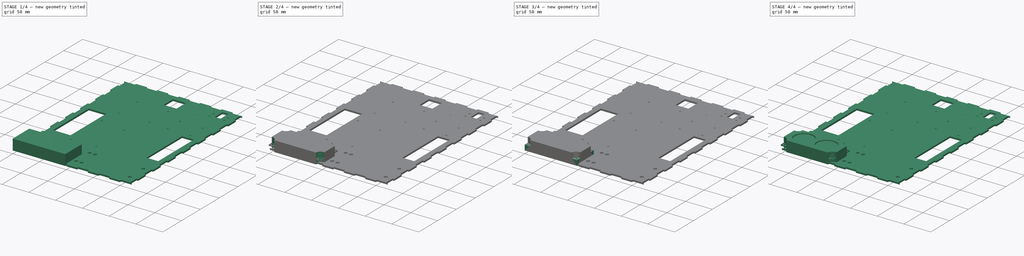
[diagram: build sequence overview — one tinted view per stage of 4, left to right]
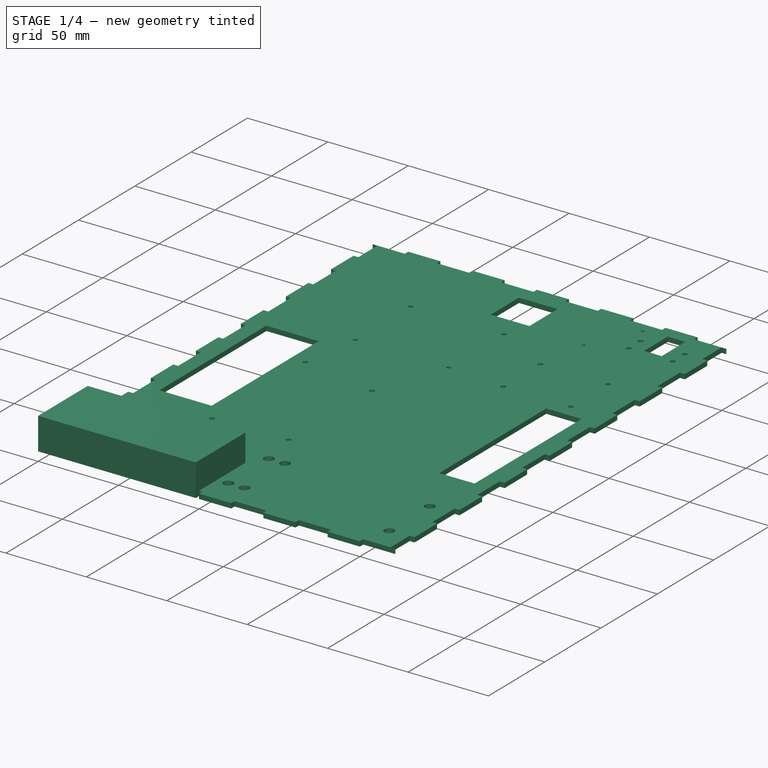
[diagram: stage 1 of 4 — iso view after this stage's code; geometry added in this stage tinted green]
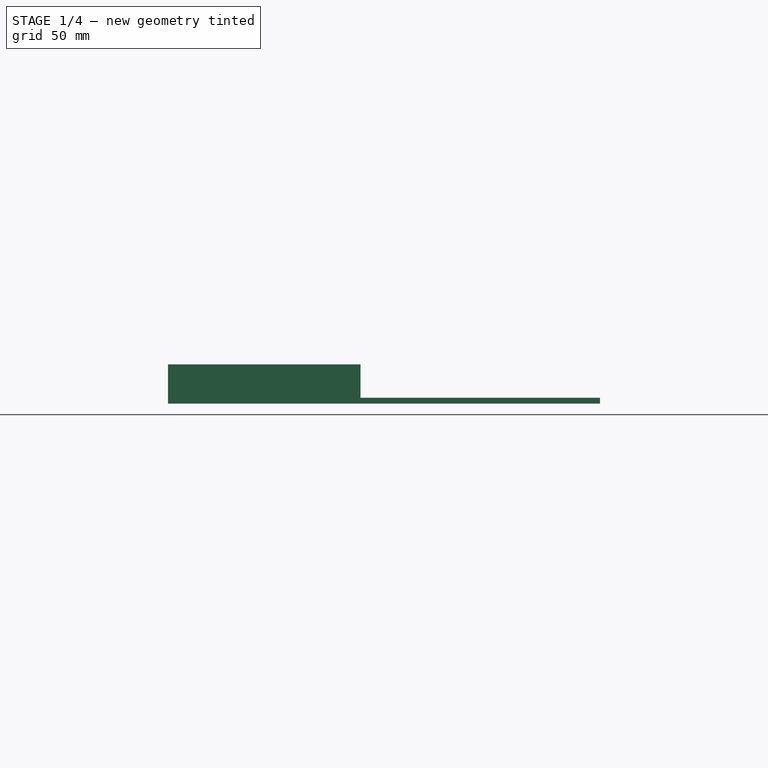
[diagram: stage 1 of 4 — front view after this stage's code; geometry added in this stage tinted green]
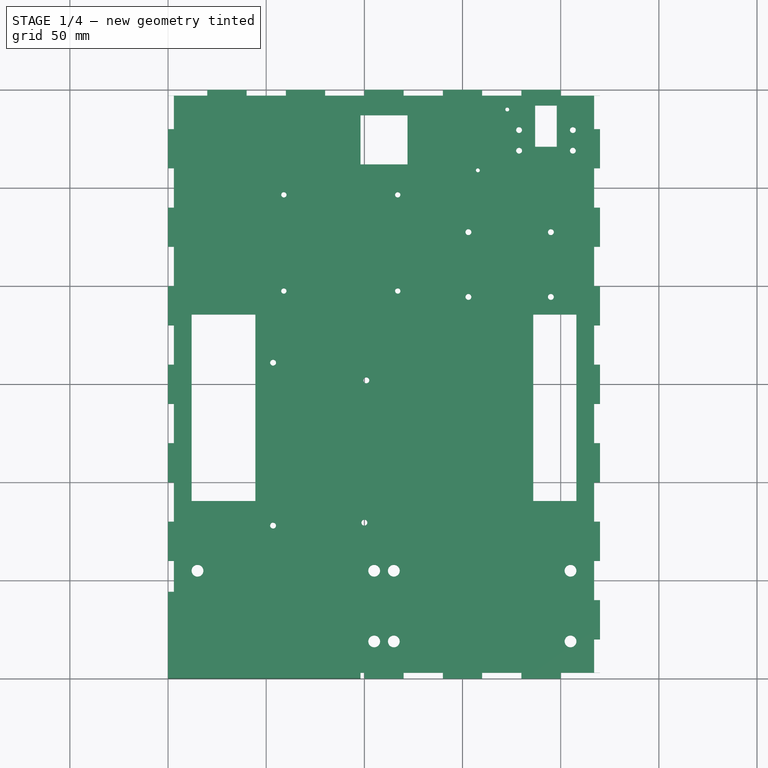
[diagram: stage 1 of 4 — top view after this stage's code; geometry added in this stage tinted green]
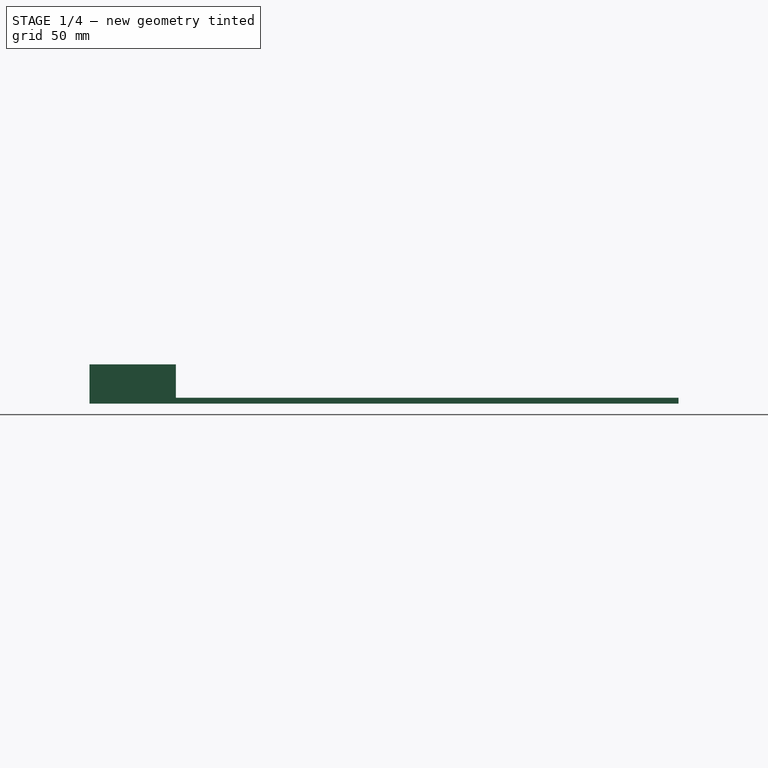
[diagram: stage 1 of 4 — right view after this stage's code; geometry added in this stage tinted green]
FCSTD DOCUMENT  (FreeCAD 0.19R24366 (Git))
Label: mdo-hw-board
License: All rights reserved
LicenseURL: http://en.wikipedia.org/wiki/All_rights_reserved
objects: Sketcher::SketchObject×12, App::FeaturePython×12, PartDesign::Pocket×7, PartDesign::Pad×3, PartDesign::Body×3, PartDesign::Hole×2, Part::Feature×1, TechDraw::DrawSVGTemplate×1, TechDraw::DrawViewPart×1, TechDraw::DrawPage×1
note: 40 computed .brp shape members not serialized (recipe doc carries the construction recipe); baked Part::Feature solids carry a one-line shape summary decoded from their .brp

FEATURE [Sketcher::SketchObject] Sketch
  FullyConstrained = true
  MapMode = 5
  Support = -> [XY_Plane]
  sketch-geometry (4):
    g0: LineSegment StartX=0 StartY=0 StartZ=0 EndX=220 EndY=0 EndZ=0
    g1: LineSegment StartX=220 StartY=0 StartZ=0 EndX=220 EndY=300 EndZ=0
    g2: LineSegment StartX=220 StartY=300 StartZ=0 EndX=0 EndY=300 EndZ=0
    g3: LineSegment StartX=0 StartY=300 StartZ=0 EndX=0 EndY=0 EndZ=0
  constraints (11):
    c: Coincident(g0,g1)
    c: Coincident(g1,g2)
    c: Coincident(g2,g3)
    c: Coincident(g3,g0)
    c: Horizontal(g0)
    c: Horizontal(g2)
    c: Vertical(g1)
    c: Vertical(g3)
    c: Coincident(g0,g-1)
    c: DistanceX(g0,g0) = 220
    c: DistanceY(g1,g1) = 300
FEATURE [PartDesign::Pad] Pad
  Direction = (1,1,1)
  Length = 3
  Length2 = 100
  Profile = -> Sketch
  Type = 0
FEATURE [Sketcher::SketchObject] Sketch001
  FullyConstrained = true
  MapMode = 5
  Placement = pos=(0,0,3) rot=(0,0,1;0rad)
  Support = -> [Pad]
  sketch-geometry (210):
    g0: LineSegment StartX=45.5 StartY=252 StartZ=0 EndX=174.5 EndY=252 EndZ=0
    g1: LineSegment StartX=174.5 StartY=252 StartZ=0 EndX=174.5 EndY=15 EndZ=0
    g2: LineSegment StartX=174.5 StartY=15 StartZ=0 EndX=45.5 EndY=15 EndZ=0
    g3: LineSegment StartX=45.5 StartY=15 StartZ=0 EndX=45.5 EndY=252 EndZ=0
    g4: LineSegment StartX=98 StartY=287 StartZ=0 EndX=122 EndY=287 EndZ=0
    g5: LineSegment StartX=122 StartY=287 StartZ=0 EndX=122 EndY=262 EndZ=0
    g6: LineSegment StartX=122 StartY=262 StartZ=0 EndX=98 EndY=262 EndZ=0
    g7: LineSegment StartX=98 StartY=262 StartZ=0 EndX=98 EndY=287 EndZ=0
    g8: LineSegment StartX=12 StartY=185.5 StartZ=0 EndX=44.5 EndY=185.5 EndZ=0
    g9: LineSegment StartX=44.5 StartY=185.5 StartZ=0 EndX=44.5 EndY=90.5 EndZ=0
    g10: LineSegment StartX=44.5 StartY=90.5 StartZ=0 EndX=12 EndY=90.5 EndZ=0
    g11: LineSegment StartX=12 StartY=90.5 StartZ=0 EndX=12 EndY=185.5 EndZ=0
    g12: LineSegment StartX=186 StartY=185.5 StartZ=0 EndX=208 EndY=185.5 EndZ=0
    g13: LineSegment StartX=208 StartY=185.5 StartZ=0 EndX=208 EndY=90.5 EndZ=0
    g14: LineSegment StartX=208 StartY=90.5 StartZ=0 EndX=186 EndY=90.5 EndZ=0
    g15: LineSegment StartX=186 StartY=90.5 StartZ=0 EndX=186 EndY=185.5 EndZ=0
    g16: LineSegment StartX=55.5 StartY=250 StartZ=0 EndX=140.5 EndY=250 EndZ=0
    g17: LineSegment StartX=140.5 StartY=250 StartZ=0 EndX=140.5 EndY=194 EndZ=0
    g18: LineSegment StartX=140.5 StartY=194 StartZ=0 EndX=55.5 EndY=194 EndZ=0
    g19: LineSegment StartX=55.5 StartY=194 StartZ=0 EndX=55.5 EndY=250 EndZ=0
    g20: Circle CenterX=59 CenterY=197.5 CenterZ=0 NormalX=0 NormalY=0 NormalZ=1 AngleXU=0 Radius=1.35
    g21: Circle CenterX=117 CenterY=197.5 CenterZ=0 NormalX=0 NormalY=0 NormalZ=1 AngleXU=0 Radius=1.35
    g22: Circle CenterX=117 CenterY=246.5 CenterZ=0 NormalX=0 NormalY=0 NormalZ=1 AngleXU=0 Radius=1.35
    g23: Circle CenterX=59 CenterY=246.5 CenterZ=0 NormalX=0 NormalY=0 NormalZ=1 AngleXU=0 Radius=1.35
    g24: LineSegment StartX=50.5 StartY=163 StartZ=0 EndX=103.5 EndY=163 EndZ=0
    g25: LineSegment StartX=103.5 StartY=163 StartZ=0 EndX=103.5 EndY=76 EndZ=0
    g26: LineSegment StartX=103.5 StartY=76 StartZ=0 EndX=50.5 EndY=76 EndZ=0
    g27: LineSegment StartX=50.5 StartY=76 StartZ=0 EndX=50.5 EndY=163 EndZ=0
    g28: LineSegment StartX=50.5 StartY=143 StartZ=0 EndX=55.5 EndY=143 EndZ=0
    g29: LineSegment StartX=55.5 StartY=143 StartZ=0 EndX=55.5 EndY=115 EndZ=0
    g30: LineSegment StartX=55.5 StartY=115 StartZ=0 EndX=50.5 EndY=115 EndZ=0
    g31: LineSegment StartX=50.5 StartY=115 StartZ=0 EndX=50.5 EndY=143 EndZ=0
    g32: Circle CenterX=53.5 CenterY=78 CenterZ=0 NormalX=0 NormalY=0 NormalZ=1 AngleXU=0 Radius=1.5
    g33: Circle CenterX=53.5 CenterY=161 CenterZ=0 NormalX=0 NormalY=0 NormalZ=1 AngleXU=0 Radius=1.5
    g34: Circle CenterX=100 CenterY=79.5 CenterZ=0 NormalX=0 NormalY=0 NormalZ=1 AngleXU=0 Radius=1.5
    g35: Circle CenterX=101 CenterY=152 CenterZ=0 NormalX=0 NormalY=0 NormalZ=1 AngleXU=0 Radius=1.5
    g36: LineSegment StartX=11 StartY=59 StartZ=0 EndX=109 EndY=59 EndZ=0
    g37: LineSegment StartX=109 StartY=59 StartZ=0 EndX=109 EndY=15 EndZ=0
    g38: LineSegment StartX=109 StartY=15 StartZ=0 EndX=11 EndY=15 EndZ=0
    g39: LineSegment StartX=11 StartY=15 StartZ=0 EndX=11 EndY=59 EndZ=0
    g40: Circle CenterX=15 CenterY=19 CenterZ=0 NormalX=0 NormalY=0 NormalZ=1 AngleXU=0 Radius=3
    g41: Circle CenterX=105 CenterY=19 CenterZ=0 NormalX=0 NormalY=0 NormalZ=1 AngleXU=0 Radius=3
    g42: Circle CenterX=105 CenterY=55 CenterZ=0 NormalX=0 NormalY=0 NormalZ=1 AngleXU=0 Radius=3
    g43: Circle CenterX=15 CenterY=55 CenterZ=0 NormalX=0 NormalY=0 NormalZ=1 AngleXU=0 Radius=3
    g44: LineSegment StartX=111 StartY=59 StartZ=0 EndX=209 EndY=59 EndZ=0
    g45: LineSegment StartX=209 StartY=59 StartZ=0 EndX=209 EndY=15 EndZ=0
    g46: LineSegment StartX=209 StartY=15 StartZ=0 EndX=111 EndY=15 EndZ=0
    g47: LineSegment StartX=111 StartY=15 StartZ=0 EndX=111 EndY=59 EndZ=0
    g48: Circle CenterX=115 CenterY=19 CenterZ=0 NormalX=0 NormalY=0 NormalZ=1 AngleXU=0 Radius=3
    g49: Circle CenterX=205 CenterY=19 CenterZ=0 NormalX=0 NormalY=0 NormalZ=1 AngleXU=0 Radius=3
    g50: Circle CenterX=205 CenterY=55 CenterZ=0 NormalX=0 NormalY=0 NormalZ=1 AngleXU=0 Radius=3
    g51: Circle CenterX=115 CenterY=55 CenterZ=0 NormalX=0 NormalY=0 NormalZ=1 AngleXU=0 Radius=3
    g52: LineSegment StartX=187 StartY=292 StartZ=0 EndX=198 EndY=292 EndZ=0
    g53: LineSegment StartX=198 StartY=292 StartZ=0 EndX=198 EndY=271 EndZ=0
    g54: LineSegment StartX=198 StartY=271 StartZ=0 EndX=187 EndY=271 EndZ=0
    g55: LineSegment StartX=187 StartY=271 StartZ=0 EndX=187 EndY=292 EndZ=0
    g56: LineSegment StartX=180.8 StartY=292 StartZ=0 EndX=204.2 EndY=292 EndZ=0
    g57: LineSegment StartX=204.2 StartY=292 StartZ=0 EndX=204.2 EndY=254.5 EndZ=0
    g58: LineSegment StartX=204.2 StartY=254.5 StartZ=0 EndX=180.8 EndY=254.5 EndZ=0
    g59: LineSegment StartX=180.8 StartY=254.5 StartZ=0 EndX=180.8 EndY=292 EndZ=0
    g60: Circle CenterX=178.8 CenterY=269 CenterZ=0 NormalX=0 NormalY=0 NormalZ=1 AngleXU=0 Radius=1.5
    g61: Circle CenterX=206.2 CenterY=269 CenterZ=0 NormalX=0 NormalY=0 NormalZ=1 AngleXU=0 Radius=1.5
    g62: Circle CenterX=178.8 CenterY=279.5 CenterZ=0 NormalX=0 NormalY=0 NormalZ=1 AngleXU=0 Radius=1.5
    g63: Circle CenterX=206.2 CenterY=279.5 CenterZ=0 NormalX=0 NormalY=0 NormalZ=1 AngleXU=0 Radius=1.5
    g64: LineSegment StartX=155.8 StartY=292 StartZ=0 EndX=174.8 EndY=292 EndZ=0
    g65: LineSegment StartX=174.8 StartY=292 StartZ=0 EndX=174.8 EndY=257 EndZ=0
    g66: LineSegment StartX=174.8 StartY=257 StartZ=0 EndX=155.8 EndY=257 EndZ=0
    g67: LineSegment StartX=155.8 StartY=257 StartZ=0 EndX=155.8 EndY=292 EndZ=0
    g68: Circle CenterX=172.8 CenterY=290 CenterZ=0 NormalX=0 NormalY=0 NormalZ=1 AngleXU=0 Radius=1
    g69: Circle CenterX=157.8 CenterY=259 CenterZ=0 NormalX=0 NormalY=0 NormalZ=1 AngleXU=0 Radius=1
    g70: LineSegment StartX=0 StartY=3 StartZ=0 EndX=20 EndY=3 EndZ=0
    g71: LineSegment StartX=20 StartY=3 StartZ=0 EndX=20 EndY=0 EndZ=0
    g72: LineSegment StartX=20 StartY=0 StartZ=0 EndX=0 EndY=0 EndZ=0
    g73: LineSegment StartX=0 StartY=0 StartZ=0 EndX=0 EndY=3 EndZ=0
    g74: LineSegment StartX=40 StartY=3 StartZ=0 EndX=60 EndY=3 EndZ=0
    g75: LineSegment StartX=60 StartY=3 StartZ=0 EndX=60 EndY=3.71509e-10 EndZ=0
    g76: LineSegment StartX=60 StartY=3.71509e-10 StartZ=0 EndX=40 EndY=3.71509e-10 EndZ=0
    g77: LineSegment StartX=40 StartY=3.71509e-10 StartZ=0 EndX=40 EndY=3 EndZ=0
    g78: LineSegment StartX=0 StartY=3 StartZ=0 EndX=40 EndY=3 EndZ=0
    g79: LineSegment StartX=80 StartY=3 StartZ=0 EndX=100 EndY=3 EndZ=0
    g80: LineSegment StartX=100 StartY=3 StartZ=0 EndX=100 EndY=6.40719e-10 EndZ=0
    g81: LineSegment StartX=100 StartY=6.40719e-10 StartZ=0 EndX=80 EndY=6.40719e-10 EndZ=0
    g82: LineSegment StartX=80 StartY=6.40719e-10 StartZ=0 EndX=80 EndY=3 EndZ=0
    g83: LineSegment StartX=40 StartY=3 StartZ=0 EndX=80 EndY=3 EndZ=0
    g84: LineSegment StartX=120 StartY=3 StartZ=0 EndX=140 EndY=3 EndZ=0
    g85: LineSegment StartX=140 StartY=3 StartZ=0 EndX=140 EndY=6.43087e-10 EndZ=0
    g86: LineSegment StartX=140 StartY=6.43087e-10 StartZ=0 EndX=120 EndY=6.43087e-10 EndZ=0
    g87: LineSegment StartX=120 StartY=6.43087e-10 StartZ=0 EndX=120 EndY=3 EndZ=0
    g88: LineSegment StartX=80 StartY=3 StartZ=0 EndX=120 EndY=3 EndZ=0
    g89: LineSegment StartX=160 StartY=3 StartZ=0 EndX=180 EndY=3 EndZ=0
    g90: LineSegment StartX=180 StartY=3 StartZ=0 EndX=180 EndY=6.43398e-10 EndZ=0
    g91: LineSegment StartX=180 StartY=6.43398e-10 StartZ=0 EndX=160 EndY=6.43398e-10 EndZ=0
    g92: LineSegment StartX=160 StartY=6.43398e-10 StartZ=0 EndX=160 EndY=3 EndZ=0
    g93: LineSegment StartX=120 StartY=3 StartZ=0 EndX=160 EndY=3 EndZ=0
    g94: LineSegment StartX=200 StartY=3 StartZ=0 EndX=220 EndY=3 EndZ=0
    g95: LineSegment StartX=220 StartY=3 StartZ=0 EndX=220 EndY=6.90634e-10 EndZ=0
    g96: LineSegment StartX=220 StartY=6.90634e-10 StartZ=0 EndX=200 EndY=6.90634e-10 EndZ=0
    g97: LineSegment StartX=200 StartY=6.90634e-10 StartZ=0 EndX=200 EndY=3 EndZ=0
    g98: LineSegment StartX=160 StartY=3 StartZ=0 EndX=200 EndY=3 EndZ=0
    g99: LineSegment StartX=0 StartY=300 StartZ=0 EndX=20 EndY=300 EndZ=0
    g100: LineSegment StartX=20 StartY=300 StartZ=0 EndX=20 EndY=297 EndZ=0
    g101: LineSegment StartX=20 StartY=297 StartZ=0 EndX=0 EndY=297 EndZ=0
    g102: LineSegment StartX=0 StartY=297 StartZ=0 EndX=0 EndY=300 EndZ=0
    g103: LineSegment StartX=40 StartY=300 StartZ=0 EndX=60 EndY=300 EndZ=0
    g104: LineSegment StartX=60 StartY=300 StartZ=0 EndX=60 EndY=297 EndZ=0
    g105: LineSegment StartX=60 StartY=297 StartZ=0 EndX=40 EndY=297 EndZ=0
    g106: LineSegment StartX=40 StartY=297 StartZ=0 EndX=40 EndY=300 EndZ=0
    g107: LineSegment StartX=0 StartY=300 StartZ=0 EndX=40 EndY=300 EndZ=0
    g108: LineSegment StartX=80 StartY=300 StartZ=0 EndX=100 EndY=300 EndZ=0
    g109: LineSegment StartX=100 StartY=300 StartZ=0 EndX=100 EndY=297 EndZ=0
    g110: LineSegment StartX=100 StartY=297 StartZ=0 EndX=80 EndY=297 EndZ=0
    g111: LineSegment StartX=80 StartY=297 StartZ=0 EndX=80 EndY=300 EndZ=0
    g112: LineSegment StartX=40 StartY=300 StartZ=0 EndX=80 EndY=300 EndZ=0
    g113: LineSegment StartX=120 StartY=300 StartZ=0 EndX=140 EndY=300 EndZ=0
    g114: LineSegment StartX=140 StartY=300 StartZ=0 EndX=140 EndY=297 EndZ=0
    g115: LineSegment StartX=140 StartY=297 StartZ=0 EndX=120 EndY=297 EndZ=0
    g116: LineSegment StartX=120 StartY=297 StartZ=0 EndX=120 EndY=300 EndZ=0
    g117: LineSegment StartX=80 StartY=300 StartZ=0 EndX=120 EndY=300 EndZ=0
    g118: LineSegment StartX=160 StartY=300 StartZ=0 EndX=180 EndY=300 EndZ=0
    g119: LineSegment StartX=180 StartY=300 StartZ=0 EndX=180 EndY=297 EndZ=0
    g120: LineSegment StartX=180 StartY=297 StartZ=0 EndX=160 EndY=297 EndZ=0
    g121: LineSegment StartX=160 StartY=297 StartZ=0 EndX=160 EndY=300 EndZ=0
    g122: LineSegment StartX=120 StartY=300 StartZ=0 EndX=160 EndY=300 EndZ=0
    g123: LineSegment StartX=200 StartY=300 StartZ=0 EndX=220 EndY=300 EndZ=0
    g124: LineSegment StartX=220 StartY=300 StartZ=0 EndX=220 EndY=297 EndZ=0
    g125: LineSegment StartX=220 StartY=297 StartZ=0 EndX=200 EndY=297 EndZ=0
    g126: LineSegment StartX=200 StartY=297 StartZ=0 EndX=200 EndY=300 EndZ=0
    g127: LineSegment StartX=160 StartY=300 StartZ=0 EndX=200 EndY=300 EndZ=0
    g128: LineSegment StartX=0 StartY=60 StartZ=0 EndX=3 EndY=60 EndZ=0
    g129: LineSegment StartX=3 StartY=60 StartZ=0 EndX=3 EndY=40 EndZ=0
    g130: LineSegment StartX=3 StartY=40 StartZ=0 EndX=0 EndY=40 EndZ=0
    g131: LineSegment StartX=0 StartY=40 StartZ=0 EndX=0 EndY=60 EndZ=0
    g132: LineSegment StartX=2.7e-15 StartY=100 StartZ=0 EndX=3 EndY=100 EndZ=0
    g133: LineSegment StartX=3 StartY=100 StartZ=0 EndX=3 EndY=80 EndZ=0
    g134: LineSegment StartX=3 StartY=80 StartZ=0 EndX=2.7e-15 EndY=80 EndZ=0
    g135: LineSegment StartX=2.7e-15 StartY=80 StartZ=0 EndX=2.7e-15 EndY=100 EndZ=0
    g136: LineSegment StartX=0 StartY=60 StartZ=0 EndX=2.7e-15 EndY=100 EndZ=0
    g137: LineSegment StartX=4.9e-15 StartY=140 StartZ=0 EndX=3 EndY=140 EndZ=0
    g138: LineSegment StartX=3 StartY=140 StartZ=0 EndX=3 EndY=120 EndZ=0
    g139: LineSegment StartX=3 StartY=120 StartZ=0 EndX=4.9e-15 EndY=120 EndZ=0
    g140: LineSegment StartX=4.9e-15 StartY=120 StartZ=0 EndX=4.9e-15 EndY=140 EndZ=0
    g141: LineSegment StartX=2.7e-15 StartY=100 StartZ=0 EndX=4.9e-15 EndY=140 EndZ=0
    g142: LineSegment StartX=7.5e-15 StartY=180 StartZ=0 EndX=3 EndY=180 EndZ=0
    g143: LineSegment StartX=3 StartY=180 StartZ=0 EndX=3 EndY=160 EndZ=0
    g144: LineSegment StartX=3 StartY=160 StartZ=0 EndX=7.5e-15 EndY=160 EndZ=0
    g145: LineSegment StartX=7.5e-15 StartY=160 StartZ=0 EndX=7.5e-15 EndY=180 EndZ=0
    g146: LineSegment StartX=4.9e-15 StartY=140 StartZ=0 EndX=7.5e-15 EndY=180 EndZ=0
    g147: LineSegment StartX=9.8e-15 StartY=220 StartZ=0 EndX=3 EndY=220 EndZ=0
    g148: LineSegment StartX=3 StartY=220 StartZ=0 EndX=3 EndY=200 EndZ=0
    g149: LineSegment StartX=3 StartY=200 StartZ=0 EndX=9.8e-15 EndY=200 EndZ=0
    g150: LineSegment StartX=9.8e-15 StartY=200 StartZ=0 EndX=9.8e-15 EndY=220 EndZ=0
    g151: LineSegment StartX=7.5e-15 StartY=180 StartZ=0 EndX=9.8e-15 EndY=220 EndZ=0
    g152: LineSegment StartX=1.24e-14 StartY=260 StartZ=0 EndX=3 EndY=260 EndZ=0
    g153: LineSegment StartX=3 StartY=260 StartZ=0 EndX=3 EndY=240 EndZ=0
    g154: LineSegment StartX=3 StartY=240 StartZ=0 EndX=1.24e-14 EndY=240 EndZ=0
    g155: LineSegment StartX=1.24e-14 StartY=240 StartZ=0 EndX=1.24e-14 EndY=260 EndZ=0
    g156: LineSegment StartX=9.8e-15 StartY=220 StartZ=0 EndX=1.24e-14 EndY=260 EndZ=0
    g157: LineSegment StartX=217 StartY=60 StartZ=0 EndX=220 EndY=60 EndZ=0
    g158: LineSegment StartX=220 StartY=60 StartZ=0 EndX=220 EndY=40 EndZ=0
    g159: LineSegment StartX=220 StartY=40 StartZ=0 EndX=217 EndY=40 EndZ=0
    g160: LineSegment StartX=217 StartY=40 StartZ=0 EndX=217 EndY=60 EndZ=0
    g161: LineSegment StartX=217 StartY=100 StartZ=0 EndX=220 EndY=100 EndZ=0
    g162: LineSegment StartX=220 StartY=100 StartZ=0 EndX=220 EndY=80 EndZ=0
    g163: LineSegment StartX=220 StartY=80 StartZ=0 EndX=217 EndY=80 EndZ=0
    g164: LineSegment StartX=217 StartY=80 StartZ=0 EndX=217 EndY=100 EndZ=0
    g165: LineSegment StartX=217 StartY=60 StartZ=0 EndX=217 EndY=100 EndZ=0
    g166: LineSegment StartX=217 StartY=140 StartZ=0 EndX=220 EndY=140 EndZ=0
    g167: LineSegment StartX=220 StartY=140 StartZ=0 EndX=220 EndY=120 EndZ=0
    g168: LineSegment StartX=220 StartY=120 StartZ=0 EndX=217 EndY=120 EndZ=0
    g169: LineSegment StartX=217 StartY=120 StartZ=0 EndX=217 EndY=140 EndZ=0
    g170: LineSegment StartX=217 StartY=100 StartZ=0 EndX=217 EndY=140 EndZ=0
    g171: LineSegment StartX=217 StartY=180 StartZ=0 EndX=220 EndY=180 EndZ=0
    g172: LineSegment StartX=220 StartY=180 StartZ=0 EndX=220 EndY=160 EndZ=0
    g173: LineSegment StartX=220 StartY=160 StartZ=0 EndX=217 EndY=160 EndZ=0
    g174: LineSegment StartX=217 StartY=160 StartZ=0 EndX=217 EndY=180 EndZ=0
    g175: LineSegment StartX=217 StartY=140 StartZ=0 EndX=217 EndY=180 EndZ=0
    g176: LineSegment StartX=217 StartY=220 StartZ=0 EndX=220 EndY=220 EndZ=0
    g177: LineSegment StartX=220 StartY=220 StartZ=0 EndX=220 EndY=200 EndZ=0
    g178: LineSegment StartX=220 StartY=200 StartZ=0 EndX=217 EndY=200 EndZ=0
    g179: LineSegment StartX=217 StartY=200 StartZ=0 EndX=217 EndY=220 EndZ=0
    g180: LineSegment StartX=217 StartY=180 StartZ=0 EndX=217 EndY=220 EndZ=0
    g181: LineSegment StartX=217 StartY=260 StartZ=0 EndX=220 EndY=260 EndZ=0
    g182: LineSegment StartX=220 StartY=260 StartZ=0 EndX=220 EndY=240 EndZ=0
    g183: LineSegment StartX=220 StartY=240 StartZ=0 EndX=217 EndY=240 EndZ=0
    g184: LineSegment StartX=217 StartY=240 StartZ=0 EndX=217 EndY=260 EndZ=0
    g185: LineSegment StartX=217 StartY=220 StartZ=0 EndX=217 EndY=260 EndZ=0
    g186: LineSegment StartX=0 StartY=20.01 StartZ=0 EndX=3 EndY=20.01 EndZ=0
    g187: LineSegment StartX=3 StartY=20.01 StartZ=0 EndX=3 EndY=3.01 EndZ=0
    g188: LineSegment StartX=3 StartY=3.01 StartZ=0 EndX=0 EndY=3.01 EndZ=0
    g189: LineSegment StartX=0 StartY=3.01 StartZ=0 EndX=0 EndY=20.01 EndZ=0
    g190: LineSegment StartX=0 StartY=296.99 StartZ=0 EndX=3 EndY=296.99 EndZ=0
    g191: LineSegment StartX=3 StartY=296.99 StartZ=0 EndX=3 EndY=279.99 EndZ=0
    g192: LineSegment StartX=3 StartY=279.99 StartZ=0 EndX=0 EndY=279.99 EndZ=0
    g193: LineSegment StartX=0 StartY=279.99 StartZ=0 EndX=0 EndY=296.99 EndZ=0
    g194: LineSegment StartX=217 StartY=296.99 StartZ=0 EndX=220 EndY=296.99 EndZ=0
    g195: LineSegment StartX=220 StartY=296.99 StartZ=0 EndX=220 EndY=279.99 EndZ=0
    g196: LineSegment StartX=220 StartY=279.99 StartZ=0 EndX=217 EndY=279.99 EndZ=0
    g197: LineSegment StartX=217 StartY=279.99 StartZ=0 EndX=217 EndY=296.99 EndZ=0
    g198: LineSegment StartX=217 StartY=20.01 StartZ=0 EndX=220 EndY=20.01 EndZ=0
    g199: LineSegment StartX=220 StartY=20.01 StartZ=0 EndX=220 EndY=3.01 EndZ=0
    g200: LineSegment StartX=220 StartY=3.01 StartZ=0 EndX=217 EndY=3.01 EndZ=0
    g201: LineSegment StartX=217 StartY=3.01 StartZ=0 EndX=217 EndY=20.01 EndZ=0
    g202: LineSegment StartX=150.5 StartY=230 StartZ=0 EndX=197.5 EndY=230 EndZ=0
    g203: LineSegment StartX=197.5 StartY=230 StartZ=0 EndX=197.5 EndY=192 EndZ=0
    g204: LineSegment StartX=197.5 StartY=192 StartZ=0 EndX=150.5 EndY=192 EndZ=0
    g205: LineSegment StartX=150.5 StartY=192 StartZ=0 EndX=150.5 EndY=230 EndZ=0
    g206: Circle CenterX=195 CenterY=194.5 CenterZ=0 NormalX=0 NormalY=0 NormalZ=1 AngleXU=0 Radius=1.5
    g207: Circle CenterX=195 CenterY=227.5 CenterZ=0 NormalX=0 NormalY=0 NormalZ=1 AngleXU=0 Radius=1.5
    g208: Circle CenterX=153 CenterY=194.5 CenterZ=0 NormalX=0 NormalY=0 NormalZ=1 AngleXU=0 Radius=1.5
    g209: Circle CenterX=153 CenterY=227.5 CenterZ=0 NormalX=0 NormalY=0 NormalZ=1 AngleXU=0 Radius=1.5
  constraints (610):
    c: Coincident(g0,g1)
    c: Coincident(g1,g2)
    c: Coincident(g2,g3)
    c: Coincident(g3,g0)
    c: Horizontal(g0)
    c: Horizontal(g2)
    c: Vertical(g1)
    c: Vertical(g3)
    c: DistanceY(g1,g1) = 237
    c: DistanceX(g2,g2) = 129
    c: DistanceY(g-1,g2) = 15
    c: DistanceX(g-1,g0) = 45.5
    c: Coincident(g4,g5)
    c: Coincident(g5,g6)
    c: Coincident(g6,g7)
    c: Coincident(g7,g4)
    c: Horizontal(g4)
    c: Horizontal(g6)
    c: Vertical(g5)
    c: Vertical(g7)
    c: DistanceY(g5,g5) = 25
    c: DistanceX(g6,g6) = 24
    c: DistanceY(g-1,g6) = 262
    c: DistanceX(g-1,g6) = 98
    c: Coincident(g8,g9)
    c: Coincident(g9,g10)
    c: Coincident(g10,g11)
    c: Coincident(g11,g8)
    c: Horizontal(g8)
    c: Horizontal(g10)
    c: Vertical(g9)
    c: Vertical(g11)
    c: DistanceX(g8,g8) = 32.5
    c: DistanceY(g9,g9) = 95
    c: DistanceX(g-1,g8) = 12
    c: Coincident(g12,g13)
    c: Coincident(g13,g14)
    c: Coincident(g14,g15)
    c: Coincident(g15,g12)
    c: Horizontal(g12)
    c: Horizontal(g14)
    c: Vertical(g13)
    c: Vertical(g15)
    c: Equal(g9,g13) = 45.5
    c: DistanceX(g8,g12) = 174
    c: DistanceY(g12,g8) = 0
    c: Coincident(g16,g17)
    c: Coincident(g17,g18)
    c: Coincident(g18,g19)
    c: Coincident(g19,g16)
    c: Horizontal(g16)
    c: Horizontal(g18)
    c: Vertical(g17)
    c: Vertical(g19)
    c: DistanceX(g18,g18) = 85
    c: DistanceY(g17,g17) = 56
    c: DistanceX(g0,g18) = 10
    c: DistanceX(g18,g20) = 3.5
    c: DistanceY(g18,g20) = 3.5
    c: Diameter(g20) = 2.7
    c: Equal(g20,g21) = 2.7
    c: DistanceX(g20,g21) = 58
    c: DistanceY(g20,g21) = 0
    c: Equal(g20,g23) = 2.7
    c: Equal(g23,g22) = 2.7
    c: DistanceX(g23,g22) = 58
    c: DistanceY(g23,g22) = 0
    c: DistanceY(g20,g23) = 49
    c: DistanceX(g23,g20) = 0
    c: DistanceY(g16,g0) = 2
    c: Coincident(g24,g25)
    c: Coincident(g25,g26)
    c: Coincident(g26,g27)
    c: Coincident(g27,g24)
    c: Horizontal(g24)
    c: Horizontal(g26)
    c: Vertical(g25)
    c: Vertical(g27)
    c: DistanceX(g26,g26) = 53
    c: DistanceY(g25,g25) = 87
    c: Coincident(g28,g29)
    c: Coincident(g29,g30)
    c: Coincident(g30,g31)
    c: Coincident(g31,g28)
    c: Horizontal(g28)
    c: Horizontal(g30)
    c: Vertical(g29)
    c: Vertical(g31)
    c: DistanceX(g30,g30) = 5
    c: DistanceY(g29,g29) = 28
    c: DistanceY(g28,g24) = 20
    c: DistanceX(g26,g30) = 0
    c: Diameter(g32) = 3
    c: DistanceX(g26,g32) = 3
    c: DistanceY(g26,g32) = 2
    c: Equal(g32,g33) = 3
    c: DistanceX(g32,g33) = 0
    c: DistanceY(g33,g24) = 2
    c: Equal(g32,g34) = 3
    c: DistanceX(g34,g25) = 3.5
    c: DistanceY(g25,g34) = 3.5
    c: DistanceX(g35,g24) = 2.5
    c: DistanceY(g35,g24) = 11
    c: DistanceY(g2,g30) = 100
    c: DistanceX(g2,g26) = 5
    c: Diameter(g35) = 3
    c: DistanceY(g8,g0) = 66.5
    c: DistanceX(g12,g12) = 22
    c: Coincident(g36,g37)
    c: Coincident(g37,g38)
    c: Coincident(g38,g39)
    c: Coincident(g39,g36)
    c: Horizontal(g36)
    c: Horizontal(g38)
    c: Vertical(g37)
    c: Vertical(g39)
    c: PointOnObject(g37,g2)
    c: DistanceY(g37,g37) = 44
    c: DistanceX(g-1,g38) = 11
    c: DistanceX(g36,g36) = 98
    c: Diameter(g40) = 6
    c: DistanceX(g38,g40) = 4
    c: DistanceY(g38,g40) = 4
    c: Equal(g40,g41) = 6
    c: DistanceY(g40,g41) = 0
    c: DistanceX(g40,g41) = 90
    c: Equal(g40,g43) = 6
    c: Equal(g43,g42) = 6
    c: DistanceY(g43,g42) = 0
    c: DistanceX(g43,g42) = 90
    c: DistanceX(g43,g40) = 0
    c: DistanceY(g40,g43) = 36
    c: Coincident(g44,g45)
    c: Coincident(g45,g46)
    c: Coincident(g46,g47)
    c: Coincident(g47,g44)
    c: Horizontal(g44)
    c: Horizontal(g46)
    c: Vertical(g45)
    c: Vertical(g47)
    c: Equal(g37,g45) = 44
    c: Equal(g36,g44) = 98
    c: Equal(g40,g48) = 6
    c: DistanceX(g46,g48) = 4
    c: DistanceY(g46,g48) = 4
    c: Equal(g48,g49) = 6
    c: DistanceY(g48,g49) = 0
    c: DistanceX(g48,g49) = 90
    c: Equal(g48,g51) = 6
    c: Equal(g51,g50) = 6
    c: DistanceY(g51,g50) = 0
    c: DistanceX(g51,g50) = 90
    c: DistanceX(g51,g48) = 0
    c: DistanceY(g48,g51) = 36
    c: DistanceX(g37,g46) = 2
    c: DistanceY(g37,g46) = 0
    c: Coincident(g52,g53)
    c: Coincident(g53,g54)
    c: Coincident(g54,g55)
    c: Coincident(g55,g52)
    c: Horizontal(g52)
    c: Horizontal(g54)
    c: Vertical(g53)
    c: Vertical(g55)
    c: DistanceX(g54,g54) = 11
    c: DistanceY(g53,g53) = 21
    c: DistanceY(g-1,g52) = 292
    c: DistanceX(g-1,g52) = 198
    c: Coincident(g56,g57)
    c: Coincident(g57,g58)
    c: Coincident(g58,g59)
    c: Coincident(g59,g56)
    c: Horizontal(g56)
    c: Horizontal(g58)
    c: Vertical(g57)
    c: Vertical(g59)
    c: DistanceX(g58,g58) = 23.4
    c: DistanceY(g52,g56) = 0
    c: DistanceX(g56,g52) = 6.2
    c: DistanceY(g57,g57) = 37.5
    c: Diameter(g60) = 3
    c: DistanceX(g60,g58) = 2
    c: DistanceY(g58,g60) = 14.5
    c: Equal(g60,g61) = 3
    c: DistanceX(g57,g61) = 2
    c: DistanceY(g61,g60) = 0
    c: Equal(g60,g62) = 3
    c: Equal(g62,g63) = 3
    c: DistanceY(g63,g62) = 0
    c: DistanceX(g61,g63) = 0
    c: DistanceY(g61,g63) = 10.5
    c: DistanceX(g60,g62) = 0
    c: Coincident(g64,g65)
    c: Coincident(g65,g66)
    c: Coincident(g66,g67)
    c: Coincident(g67,g64)
    c: Horizontal(g64)
    c: Horizontal(g66)
    c: Vertical(g65)
    c: Vertical(g67)
    c: DistanceX(g64,g64) = 19
    c: DistanceY(g67,g67) = 35
    c: DistanceY(g56,g64) = 0
    c: DistanceX(g64,g56) = 6
    c: Diameter(g68) = 2
    c: DistanceX(g68,g64) = 2
    c: DistanceY(g68,g64) = 2
    c: Equal(g68,g69) = 2
    c: DistanceX(g66,g69) = 2
    c: DistanceY(g66,g69) = 2
    c: Coincident(g70,g71)
    c: Coincident(g71,g72)
    c: Coincident(g72,g73)
    c: Coincident(g73,g70)
    c: Horizontal(g70)
    c: Horizontal(g72)
    c: Vertical(g71)
    c: Vertical(g73)
    c: DistanceY(g71,g71) = 3
    c: DistanceX(g72,g72) = 20
    c: DistanceX(g-1,g72) = 0
    c: Coincident(g74,g75)
    c: Coincident(g75,g76)
    c: Coincident(g76,g77)
    c: Coincident(g77,g74)
    c: Horizontal(g74)
    c: Horizontal(g76)
    c: Vertical(g75)
    c: Vertical(g77)
    c: Equal(g71,g75) = 3
    c: Equal(g72,g76) = 20
    c: Coincident(g70,g78)
    c: Coincident(g74,g78)
    c: Distance(g78) = 40
    c: Angle(g78) = 0
    c: Coincident(g79,g80)
    c: Coincident(g80,g81)
    c: Coincident(g81,g82)
    c: Coincident(g82,g79)
    c: Horizontal(g79)
    c: Horizontal(g81)
    c: Vertical(g80)
    c: Vertical(g82)
    c: Equal(g71,g80) = 3
    c: Equal(g72,g81) = 20
    c: Coincident(g74,g83)
    c: Coincident(g79,g83)
    c: Equal(g78,g83)
    c: Parallel(g83,g78)
    c: Coincident(g84,g85)
    c: Coincident(g85,g86)
    c: Coincident(g86,g87)
    c: Coincident(g87,g84)
    c: Horizontal(g84)
    c: Horizontal(g86)
    c: Vertical(g85)
    c: Vertical(g87)
    c: Equal(g71,g85) = 3
    c: Equal(g72,g86) = 20
    c: Coincident(g79,g88)
    c: Coincident(g84,g88)
    c: Equal(g78,g88)
    c: Parallel(g88,g78)
    c: Coincident(g89,g90)
    c: Coincident(g90,g91)
    c: Coincident(g91,g92)
    c: Coincident(g92,g89)
    c: Horizontal(g89)
    c: Horizontal(g91)
    c: Vertical(g90)
    c: Vertical(g92)
    c: Equal(g71,g90) = 3
    c: Equal(g72,g91) = 20
    c: Coincident(g84,g93)
    c: Coincident(g89,g93)
    c: Equal(g78,g93)
    c: Parallel(g93,g78)
    c: Coincident(g94,g95)
    c: Coincident(g95,g96)
    c: Coincident(g96,g97)
    c: Coincident(g97,g94)
    c: Horizontal(g94)
    c: Horizontal(g96)
    c: Vertical(g95)
    c: Vertical(g97)
    c: Equal(g71,g95) = 3
    c: Equal(g72,g96) = 20
    c: Coincident(g89,g98)
    c: Coincident(g94,g98)
    c: Equal(g78,g98)
    c: Parallel(g98,g78)
    c: Coincident(g99,g100)
    c: Coincident(g100,g101)
    c: Coincident(g101,g102)
    c: Coincident(g102,g99)
    c: Horizontal(g99)
    c: Horizontal(g101)
    c: Vertical(g100)
    c: Vertical(g102)
    c: Equal(g71,g100) = 3
    c: Equal(g72,g101) = 20
    c: Coincident(g103,g104)
    c: Coincident(g104,g105)
    c: Coincident(g105,g106)
    c: Coincident(g106,g103)
    c: Horizontal(g103)
    c: Horizontal(g105)
    c: Vertical(g104)
    c: Vertical(g106)
    c: Equal(g100,g104) = 3
    c: Equal(g101,g105) = 20
    c: Coincident(g99,g107)
    c: Coincident(g103,g107)
    c: Equal(g78,g107) = 40
    c: Parallel(g78,g107)
    c: Coincident(g108,g109)
    c: Coincident(g109,g110)
    c: Coincident(g110,g111)
    c: Coincident(g111,g108)
    c: Horizontal(g108)
    c: Horizontal(g110)
    c: Vertical(g109)
    c: Vertical(g111)
    c: Equal(g100,g109) = 3
    c: Equal(g101,g110) = 20
    c: Coincident(g103,g112)
    c: Coincident(g108,g112)
    c: Equal(g107,g112)
    c: Parallel(g112,g107)
    c: Coincident(g113,g114)
    c: Coincident(g114,g115)
    c: Coincident(g115,g116)
    c: Coincident(g116,g113)
    c: Horizontal(g113)
    c: Horizontal(g115)
    c: Vertical(g114)
    c: Vertical(g116)
    c: Equal(g100,g114) = 3
    c: Equal(g101,g115) = 20
    c: Coincident(g108,g117)
    c: Coincident(g113,g117)
    c: Equal(g107,g117)
    c: Parallel(g117,g107)
    c: Coincident(g118,g119)
    c: Coincident(g119,g120)
    c: Coincident(g120,g121)
    c: Coincident(g121,g118)
    c: Horizontal(g118)
    c: Horizontal(g120)
    c: Vertical(g119)
    c: Vertical(g121)
    c: Equal(g100,g119) = 3
    c: Equal(g101,g120) = 20
    c: Coincident(g113,g122)
    c: Coincident(g118,g122)
    c: Equal(g107,g122)
    c: Parallel(g122,g107)
    c: Coincident(g123,g124)
    c: Coincident(g124,g125)
    c: Coincident(g125,g126)
    c: Coincident(g126,g123)
    c: Horizontal(g123)
    c: Horizontal(g125)
    c: Vertical(g124)
    c: Vertical(g126)
    c: Equal(g100,g124) = 3
    c: Equal(g101,g125) = 20
    c: Coincident(g118,g127)
    c: Coincident(g123,g127)
    c: Equal(g107,g127)
    c: Parallel(g127,g107)
    c: DistanceX(g101,g70) = 0
    c: DistanceY(g-1,g72) = 0
    c: DistanceY(g72,g99) = 300
    c: Coincident(g128,g129)
    c: Coincident(g129,g130)
    c: Coincident(g130,g131)
    c: Coincident(g131,g128)
    c: Horizontal(g128)
    c: Horizontal(g130)
    c: Vertical(g129)
    c: Vertical(g131)
    c: DistanceX(g128,g128) = 3
    c: DistanceY(g129,g129) = 20
    c: DistanceX(g72,g130) = 0
    c: DistanceY(g72,g130) = 40
    c: Coincident(g132,g133)
    c: Coincident(g133,g134)
    c: Coincident(g134,g135)
    c: Coincident(g135,g132)
    c: Horizontal(g132)
    c: Horizontal(g134)
    c: Vertical(g133)
    c: Vertical(g135)
    c: Equal(g128,g132) = 3
    c: Equal(g129,g133) = 20
    c: Coincident(g128,g136)
    c: Coincident(g132,g136)
    c: Distance(g136) = 40
    c: Angle(g136) = 1.5708
    c: Coincident(g137,g138)
    c: Coincident(g138,g139)
    c: Coincident(g139,g140)
    c: Coincident(g140,g137)
    c: Horizontal(g137)
    c: Horizontal(g139)
    c: Vertical(g138)
    c: Vertical(g140)
    c: Equal(g128,g137) = 3
    c: Equal(g129,g138) = 20
    c: Coincident(g132,g141)
    c: Coincident(g137,g141)
    c: Equal(g136,g141)
    c: Parallel(g141,g136)
    c: Coincident(g142,g143)
    c: Coincident(g143,g144)
    c: Coincident(g144,g145)
    c: Coincident(g145,g142)
    c: Horizontal(g142)
    c: Horizontal(g144)
    c: Vertical(g143)
    c: Vertical(g145)
    c: Equal(g128,g142) = 3
    c: Equal(g129,g143) = 20
    c: Coincident(g137,g146)
    c: Coincident(g142,g146)
    c: Equal(g136,g146)
    c: Parallel(g146,g136)
    c: Coincident(g147,g148)
    c: Coincident(g148,g149)
    c: Coincident(g149,g150)
    c: Coincident(g150,g147)
    c: Horizontal(g147)
    c: Horizontal(g149)
    c: Vertical(g148)
    c: Vertical(g150)
    c: Equal(g128,g147) = 3
    c: Equal(g129,g148) = 20
    c: Coincident(g142,g151)
    c: Coincident(g147,g151)
    c: Equal(g136,g151)
    c: Parallel(g151,g136)
    c: Coincident(g152,g153)
    c: Coincident(g153,g154)
    c: Coincident(g154,g155)
    c: Coincident(g155,g152)
    c: Horizontal(g152)
    c: Horizontal(g154)
    c: Vertical(g153)
    c: Vertical(g155)
    c: Equal(g128,g152) = 3
    c: Equal(g129,g153) = 20
    c: Coincident(g147,g156)
    c: Coincident(g152,g156)
    c: Equal(g136,g156)
    c: Parallel(g156,g136)
    c: Coincident(g157,g158)
    c: Coincident(g158,g159)
    c: Coincident(g159,g160)
    c: Coincident(g160,g157)
    c: Horizontal(g157)
    c: Horizontal(g159)
    c: Vertical(g158)
    c: Vertical(g160)
    c: Equal(g128,g157) = 3
    c: Equal(g129,g158) = 20
    c: Coincident(g161,g162)
    c: Coincident(g162,g163)
    c: Coincident(g163,g164)
    c: Coincident(g164,g161)
    c: Horizontal(g161)
    c: Horizontal(g163)
    c: Vertical(g162)
    c: Vertical(g164)
    c: Equal(g157,g161) = 3
    c: Equal(g158,g162) = 20
    c: Coincident(g157,g165)
    c: Coincident(g161,g165)
    c: Equal(g136,g165) = 40
    c: Parallel(g136,g165) = 1.5708
    c: Coincident(g166,g167)
    c: Coincident(g167,g168)
    c: Coincident(g168,g169)
    c: Coincident(g169,g166)
    c: Horizontal(g166)
    c: Horizontal(g168)
    c: Vertical(g167)
    c: Vertical(g169)
    c: Equal(g157,g166) = 3
    c: Equal(g158,g167) = 20
    c: Coincident(g161,g170)
    c: Coincident(g166,g170)
    c: Equal(g165,g170)
    c: Parallel(g170,g165)
    c: Coincident(g171,g172)
    c: Coincident(g172,g173)
    c: Coincident(g173,g174)
    c: Coincident(g174,g171)
    c: Horizontal(g171)
    c: Horizontal(g173)
    c: Vertical(g172)
    c: Vertical(g174)
    c: Equal(g157,g171) = 3
    c: Equal(g158,g172) = 20
    c: Coincident(g166,g175)
    c: Coincident(g171,g175)
    c: Equal(g165,g175)
    c: Parallel(g175,g165)
    c: Coincident(g176,g177)
    c: Coincident(g177,g178)
    c: Coincident(g178,g179)
    c: Coincident(g179,g176)
    c: Horizontal(g176)
    c: Horizontal(g178)
    c: Vertical(g177)
    c: Vertical(g179)
    c: Equal(g157,g176) = 3
    c: Equal(g158,g177) = 20
    c: Coincident(g171,g180)
    c: Coincident(g176,g180)
    c: Equal(g165,g180)
    c: Parallel(g180,g165)
    c: Coincident(g181,g182)
    c: Coincident(g182,g183)
    c: Coincident(g183,g184)
    c: Coincident(g184,g181)
    c: Horizontal(g181)
    c: Horizontal(g183)
    c: Vertical(g182)
    c: Vertical(g184)
    c: Equal(g157,g181) = 3
    c: Equal(g158,g182) = 20
    c: Coincident(g176,g185)
    c: Coincident(g181,g185)
    c: Equal(g165,g185)
    c: Parallel(g185,g165)
    c: DistanceY(g152,g181) = 0
    c: DistanceX(g94,g158) = 0
    c: Coincident(g186,g187)
    c: Coincident(g187,g188)
    c: Coincident(g188,g189)
    c: Coincident(g189,g186)
    c: Horizontal(g186)
    c: Horizontal(g188)
    c: Vertical(g187)
    c: Vertical(g189)
    c: DistanceX(g186,g186) = 3
    c: DistanceY(g187,g187) = 17
    c: DistanceX(g70,g188) = 0
    c: DistanceY(g70,g188) = 0.01
    c: Coincident(g190,g191)
    c: Coincident(g191,g192)
    c: Coincident(g192,g193)
    c: Coincident(g193,g190)
    c: Horizontal(g190)
    c: Horizontal(g192)
    c: Vertical(g191)
    c: Vertical(g193)
    c: Equal(g186,g190) = 3
    c: Equal(g187,g191) = 17
    c: PointOnObject(g193,g-2)
    c: DistanceY(g190,g101) = 0.01
    c: Coincident(g194,g195)
    c: Coincident(g195,g196)
    c: Coincident(g196,g197)
    c: Coincident(g197,g194)
    c: Horizontal(g194)
    c: Horizontal(g196)
    c: Vertical(g195)
    c: Vertical(g197)
    c: DistanceX(g181,g195) = 0
    c: Equal(g196,g181)
    c: DistanceY(g194,g124) = 0.01
    c: Coincident(g198,g199)
    c: Coincident(g199,g200)
    c: Coincident(g200,g201)
    c: Coincident(g201,g198)
    c: Horizontal(g198)
    c: Horizontal(g200)
    c: Vertical(g199)
    c: Vertical(g201)
    c: DistanceX(g94,g199) = 0
    c: Equal(g200,g159)
    c: DistanceY(g94,g199) = 0.01
    c: Equal(g187,g201)
    c: Equal(g197,g191)
    c: Coincident(g202,g203)
    c: Coincident(g203,g204)
    c: Coincident(g204,g205)
    c: Coincident(g205,g202)
    c: Horizontal(g202)
    c: Horizontal(g204)
    c: Vertical(g203)
    c: Vertical(g205)
    c: DistanceX(g204,g204) = 47
    c: DistanceY(g203,g203) = 38
    c: Diameter(g206) = 3
    c: DistanceX(g206,g203) = 2.5
    c: DistanceY(g203,g206) = 2.5
    c: Equal(g206,g207) = 3
    c: DistanceX(g206,g207) = 0
    c: DistanceY(g206,g207) = 33
    c: Equal(g206,g208) = 3
    c: Equal(g208,g209) = 3
    c: DistanceX(g208,g209) = 0
    c: DistanceY(g208,g209) = 33
    c: DistanceX(g208,g206) = 42
    c: DistanceY(g208,g206) = 0
    c: DistanceX(g16,g202) = 10
    c: DistanceY(g202,g16) = 20
FEATURE [PartDesign::Pocket] Pocket
  BaseFeature = -> Pad
  Length = 5
  Length2 = 100
  Profile = -> Sketch001
  Type = 1
FEATURE [PartDesign::Body] Body001
  Group = -> [Sketch002,Pad001,Sketch003,Pocket001,Sketch004,Pocket002,Sketch005,Hole,Sketch006,Pocket003]
  Origin = -> Origin001
  Placement = pos=(4.99576,-71.651,0) rot=(0,0,1;0rad)
  Tip = -> Pocket003
FEATURE [Sketcher::SketchObject] Sketch007
  FullyConstrained = true
  MapMode = 5
  sketch-geometry (4):
    g0: LineSegment StartX=0 StartY=0 StartZ=0 EndX=98 EndY=0 EndZ=0
    g1: LineSegment StartX=98 StartY=0 StartZ=0 EndX=98 EndY=44 EndZ=0
    g2: LineSegment StartX=98 StartY=44 StartZ=0 EndX=0 EndY=44 EndZ=0
    g3: LineSegment StartX=0 StartY=44 StartZ=0 EndX=0 EndY=0 EndZ=0
  constraints (11):
    c: Coincident(g0,g1)
    c: Coincident(g1,g2)
    c: Coincident(g2,g3)
    c: Coincident(g3,g0)
    c: Horizontal(g0)
    c: Horizontal(g2)
    c: Vertical(g1)
    c: Vertical(g3)
    c: Coincident(g0,g-1)
    c: DistanceX(g2,g2) = 98
    c: DistanceY(g1,g1) = 44
FEATURE [PartDesign::Pad] Pad002
  Direction = (1,1,1)
  Length = 20
  Length2 = 100
  Profile = -> Sketch007
  Type = 0
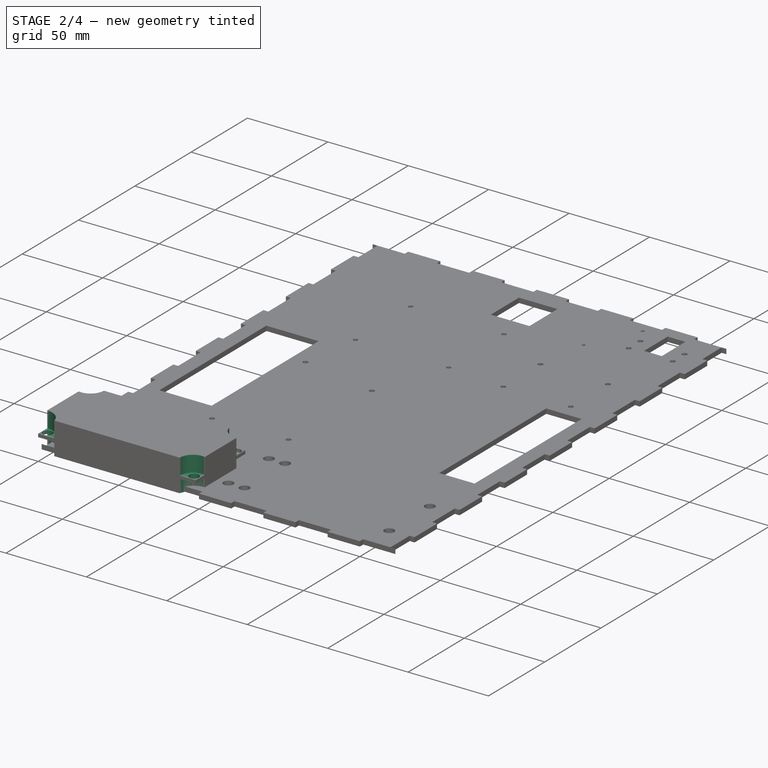
[diagram: stage 2 of 4 — iso view after this stage's code; geometry added in this stage tinted green]
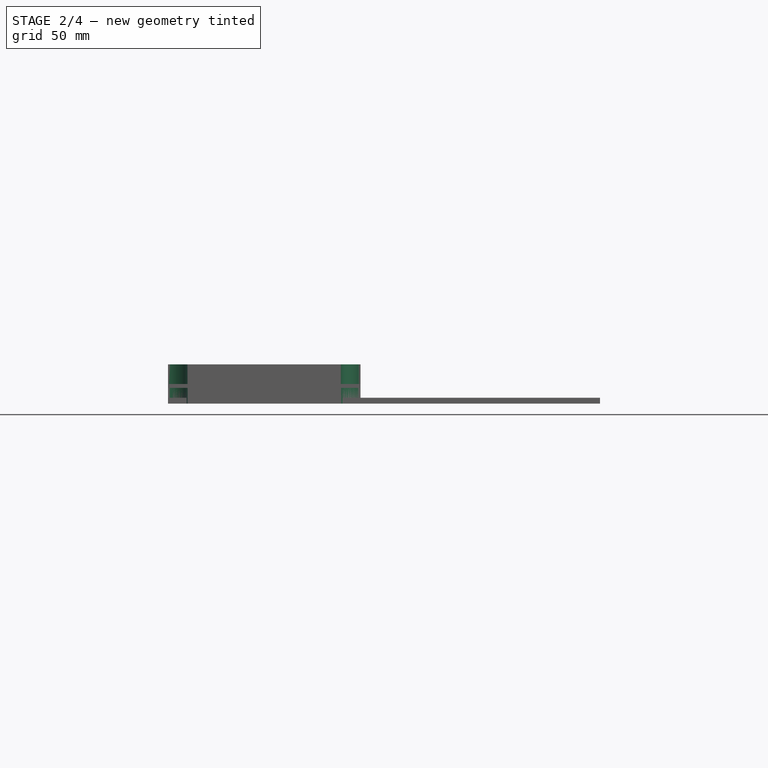
[diagram: stage 2 of 4 — front view after this stage's code; geometry added in this stage tinted green]
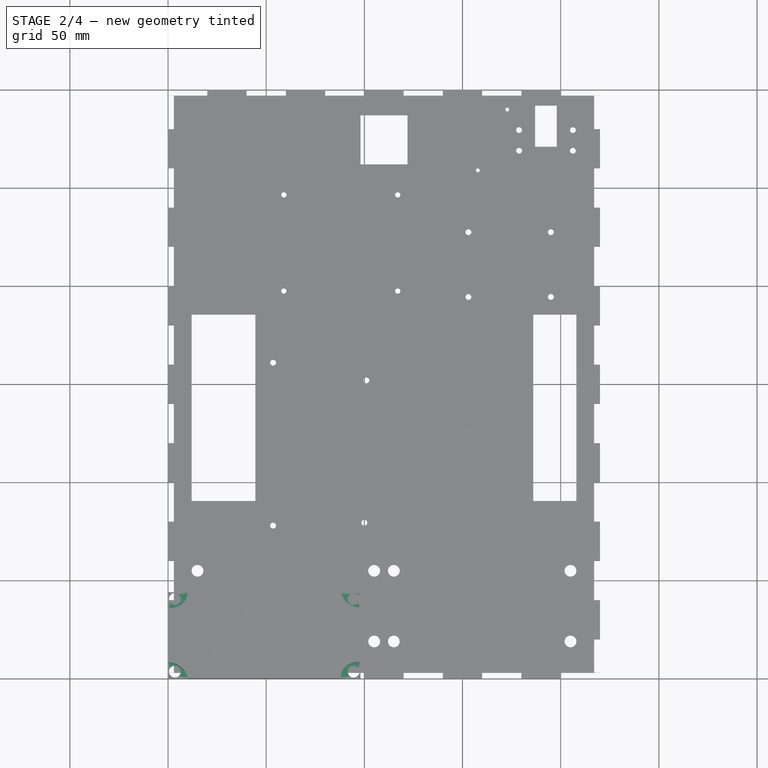
[diagram: stage 2 of 4 — top view after this stage's code; geometry added in this stage tinted green]
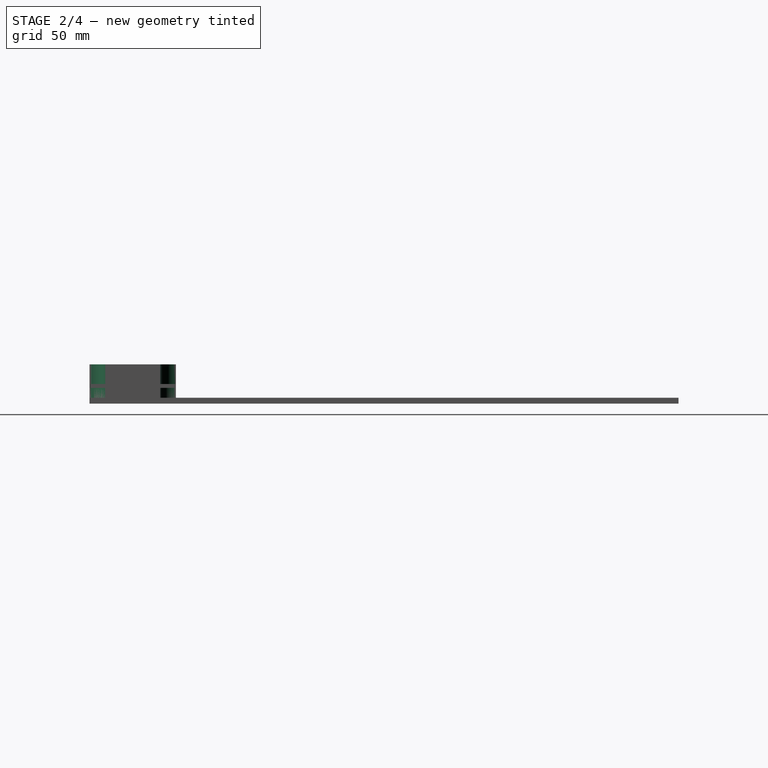
[diagram: stage 2 of 4 — right view after this stage's code; geometry added in this stage tinted green]
FEATURE [Sketcher::SketchObject] Sketch009
  FullyConstrained = true
  MapMode = 5
  Placement = pos=(0,0,20) rot=(0,0,1;0rad)
  Support = -> [Pad002]
  sketch-geometry (12):
    g0: LineSegment StartX=0 StartY=44 StartZ=0 EndX=-2.2e-15 EndY=36 EndZ=0
    g1: LineSegment StartX=0 StartY=44 StartZ=0 EndX=10 EndY=44 EndZ=0
    g2: LineSegment StartX=0 StartY=0 StartZ=0 EndX=6e-16 EndY=8 EndZ=0
    g3: LineSegment StartX=0 StartY=0 StartZ=0 EndX=10 EndY=0 EndZ=0
    g4: ArcOfCircle CenterX=0 CenterY=-2.25 CenterZ=0 NormalX=0 NormalY=0 NormalZ=1 AngleXU=0 Radius=10.25 StartAngle=0.221314 EndAngle=1.5708
    g5: ArcOfCircle CenterX=1.8 CenterY=44 CenterZ=0 NormalX=0 NormalY=0 NormalZ=1 AngleXU=0 Radius=8.2 StartAngle=4.49107 EndAngle=6.28319
    g6: LineSegment StartX=98 StartY=36 StartZ=0 EndX=98 EndY=44 EndZ=0
    g7: LineSegment StartX=98 StartY=44 StartZ=0 EndX=88 EndY=44 EndZ=0
    g8: ArcOfCircle CenterX=98 CenterY=46.25 CenterZ=0 NormalX=0 NormalY=0 NormalZ=1 AngleXU=0 Radius=10.25 StartAngle=3.36291 EndAngle=4.71239
    g9: LineSegment StartX=88 StartY=1e-15 StartZ=0 EndX=98 EndY=0 EndZ=0
    g10: LineSegment StartX=98 StartY=0 StartZ=0 EndX=98 EndY=8 EndZ=0
    g11: ArcOfCircle CenterX=96.2 CenterY=0 CenterZ=0 NormalX=0 NormalY=0 NormalZ=1 AngleXU=0 Radius=8.2 StartAngle=1.34948 EndAngle=3.14159
  constraints (40):
    c: PointOnObject(g0,g-2)
    c: PointOnObject(g0,g-2)
    c: Coincident(g1,g0)
    c: Coincident(g2,g-1)
    c: PointOnObject(g2,g-2)
    c: Coincident(g3,g2)
    c: PointOnObject(g3,g-1)
    c: Coincident(g4,g3)
    c: Coincident(g4,g2)
    c: DistanceX(g2,g3) = 10
    c: DistanceY(g2,g2) = 8
    c: DistanceY(g2,g0) = 28
    c: DistanceY(g0,g0) = 8
    c: DistanceX(g0,g1) = 10
    c: DistanceX(g2,g4) = 0
    c: Coincident(g5,g0)
    c: Coincident(g5,g1)
    c: Horizontal(g1,g0)
    c: DistanceY(g5,g0) = 0
    c: Vertical(g6)
    c: PointOnObject(g7,g6)
    c: Horizontal(g7)
    c: Horizontal(g6,g7)
    c: Horizontal(g7,g1)
    c: DistanceX(g7,g6) = 10
    c: DistanceX(g1,g7) = 78
    c: DistanceY(g6,g6) = 8
    c: Coincident(g8,g7)
    c: Coincident(g8,g6)
    c: DistanceX(g6,g8) = 0
    c: PointOnObject(g9,g-1)
    c: PointOnObject(g9,g-1)
    c: Coincident(g10,g9)
    c: Vertical(g10)
    c: DistanceY(g9,g10) = 8
    c: DistanceX(g9,g9) = 10
    c: DistanceX(g3,g9) = 78
    c: Coincident(g11,g9)
    c: Coincident(g11,g10)
    c: DistanceY(g9,g11) = 0
FEATURE [PartDesign::Pocket] Pocket004
  BaseFeature = -> Pad002
  Length = 10
  Length2 = 100
  Profile = -> Sketch009
  Type = 0
FEATURE [Sketcher::SketchObject] Sketch008
  FullyConstrained = true
  MapMode = 5
  Placement = pos=(0,0,0) rot=(1,0,0;3.14159rad)
  Support = -> [Pocket004]
  sketch-geometry (12):
    g0: LineSegment StartX=10 StartY=-44 StartZ=0 EndX=0 EndY=-44 EndZ=0
    g1: LineSegment StartX=6e-16 StartY=-36 StartZ=0 EndX=0 EndY=-44 EndZ=0
    g2: ArcOfCircle CenterX=0 CenterY=-46.25 CenterZ=0 NormalX=0 NormalY=0 NormalZ=1 AngleXU=0 Radius=10.25 StartAngle=0.221314 EndAngle=1.5708
    g3: LineSegment StartX=0 StartY=0 StartZ=0 EndX=2.4e-15 EndY=-8 EndZ=0
    g4: LineSegment StartX=0 StartY=0 StartZ=0 EndX=10 EndY=-2e-15 EndZ=0
    g5: ArcOfCircle CenterX=1.8 CenterY=0 CenterZ=0 NormalX=0 NormalY=0 NormalZ=1 AngleXU=0 Radius=8.2 StartAngle=4.49107 EndAngle=6.28319
    g6: LineSegment StartX=98 StartY=0 StartZ=0 EndX=88 EndY=1.8e-15 EndZ=0
    g7: LineSegment StartX=98 StartY=0 StartZ=0 EndX=98 EndY=-8 EndZ=0
    g8: ArcOfCircle CenterX=98 CenterY=2.25 CenterZ=0 NormalX=0 NormalY=0 NormalZ=1 AngleXU=0 Radius=10.25 StartAngle=3.36291 EndAngle=4.71239
    g9: LineSegment StartX=88 StartY=-44 StartZ=0 EndX=98 EndY=-44 EndZ=0
    g10: LineSegment StartX=98 StartY=-44 StartZ=0 EndX=98 EndY=-36 EndZ=0
    g11: ArcOfCircle CenterX=96.2 CenterY=-44 CenterZ=0 NormalX=0 NormalY=0 NormalZ=1 AngleXU=0 Radius=8.2 StartAngle=1.34948 EndAngle=3.14159
  constraints (39):
    c: PointOnObject(g0,g-2)
    c: Horizontal(g0)
    c: PointOnObject(g1,g-2)
    c: Coincident(g1,g0)
    c: Coincident(g2,g1)
    c: Coincident(g2,g0)
    c: DistanceX(g0,g2) = 0
    c: DistanceX(g0,g0) = 10
    c: DistanceY(g0,g1) = 8
    c: DistanceY(g1,g-1) = 36
    c: Coincident(g3,g-1)
    c: PointOnObject(g3,g-2)
    c: Coincident(g4,g3)
    c: PointOnObject(g4,g-1)
    c: DistanceX(g3,g4) = 10
    c: DistanceY(g3,g3) = 8
    c: Coincident(g5,g3)
    c: Coincident(g5,g4)
    c: DistanceY(g5,g3) = 0
    c: PointOnObject(g6,g-1)
    c: PointOnObject(g6,g-1)
    c: Coincident(g7,g6)
    c: Vertical(g7)
    c: DistanceX(g6,g6) = 10
    c: DistanceX(g4,g6) = 78
    c: DistanceY(g7,g6) = 8
    c: Coincident(g8,g6)
    c: Coincident(g8,g7)
    c: DistanceX(g8,g6) = 0
    c: Horizontal(g9)
    c: Coincident(g10,g9)
    c: Vertical(g10)
    c: DistanceX(g0,g9) = 78
    c: DistanceX(g9,g9) = 10
    c: DistanceY(g9,g10) = 8
    c: DistanceY(g10,g7) = 28
    c: Coincident(g11,g10)
    c: Coincident(g11,g9)
    c: DistanceY(g11,g9) = 0
FEATURE [PartDesign::Pocket] Pocket005
  BaseFeature = -> Pocket004
  Length = 8
  Length2 = 100
  Profile = -> Sketch008
  Type = 0
FEATURE [Sketcher::SketchObject] Sketch010
  FullyConstrained = true
  MapMode = 5
  Placement = pos=(0,0,10) rot=(0,0,1;0rad)
  Support = -> [Pocket005]
  sketch-geometry (4):
    g0: Circle CenterX=3.5 CenterY=3.5 CenterZ=0 NormalX=0 NormalY=0 NormalZ=1 AngleXU=0 Radius=3
    g1: Circle CenterX=3.5 CenterY=40.5 CenterZ=0 NormalX=0 NormalY=0 NormalZ=1 AngleXU=0 Radius=3
    g2: Circle CenterX=94.5 CenterY=40.5 CenterZ=0 NormalX=0 NormalY=0 NormalZ=1 AngleXU=0 Radius=3
    g3: Circle CenterX=94.5 CenterY=3.5 CenterZ=0 NormalX=0 NormalY=0 NormalZ=1 AngleXU=0 Radius=3
  constraints (12):
    c: Diameter(g0) = 6
    c: DistanceY(g-1,g0) = 3.5
    c: DistanceX(g-1,g0) = 3.5
    c: Diameter(g1) = 6
    c: DistanceX(g-1,g1) = 3.5
    c: DistanceY(g-1,g1) = 40.5
    c: Diameter(g2) = 6
    c: Diameter(g3) = 6
    c: DistanceY(g1,g2) = 0
    c: DistanceX(g1,g2) = 91
    c: DistanceX(g0,g3) = 91
    c: DistanceY(g3,g0) = 0
FEATURE [PartDesign::Hole] Hole001
  BaseFeature = -> Pocket005
  Depth = 25
  DepthType = 0
  Diameter = 6
  DrillForDepth = false
  DrillPoint = 1
  DrillPointAngle = 118
  HoleCutCountersinkAngle = 90
  HoleCutCustomValues = false
  HoleCutDepth = 0
  HoleCutDiameter = 6.1
  HoleCutType = 0
  ModelActualThread = false
  Profile = -> Sketch010
  Tapered = false
  TaperedAngle = 90
  ThreadAngle = 0
  ThreadClass = 0
  ThreadCutOffInner = 0
  ThreadCutOffOuter = 0
  ThreadDirection = 0
  ThreadFit = 0
  ThreadPitch = 0
  ThreadSize = 0
  ThreadType = 0
  Threaded = false
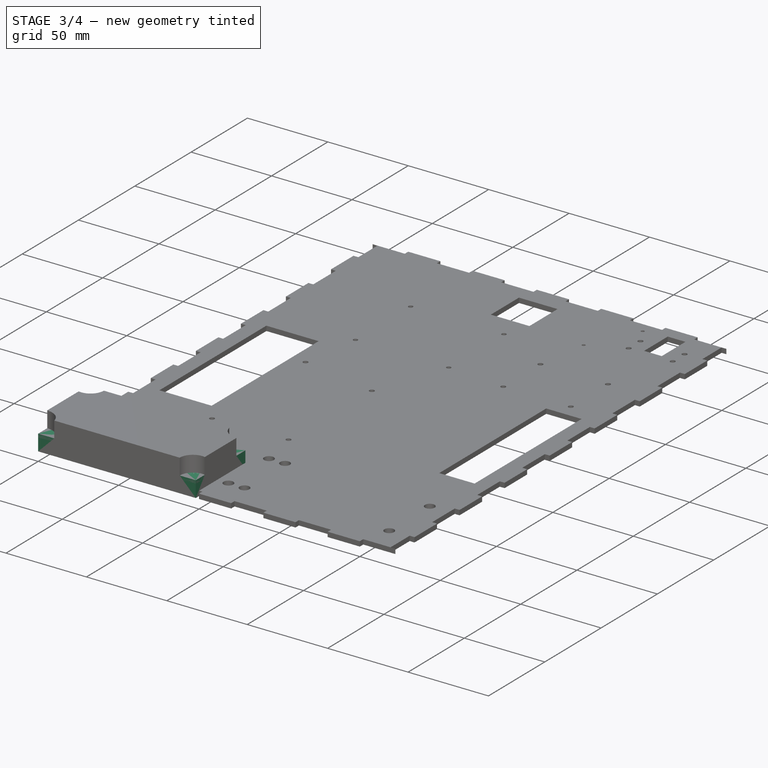
[diagram: stage 3 of 4 — iso view after this stage's code; geometry added in this stage tinted green]
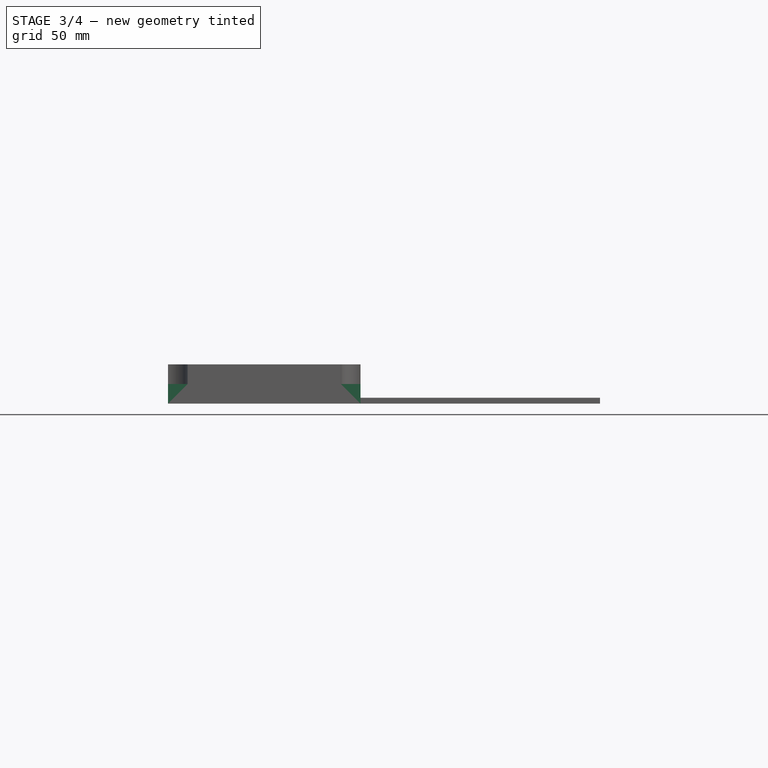
[diagram: stage 3 of 4 — front view after this stage's code; geometry added in this stage tinted green]
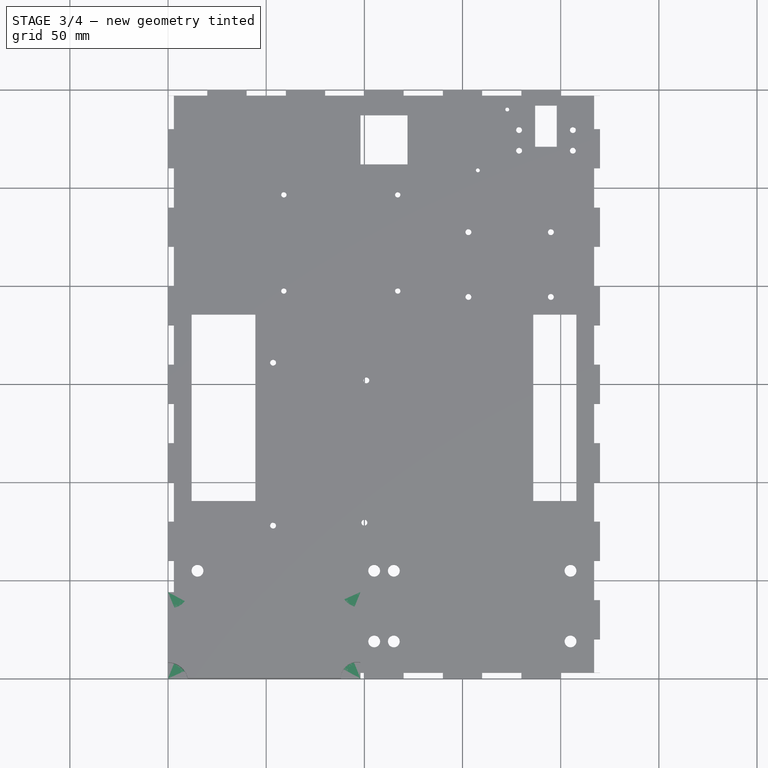
[diagram: stage 3 of 4 — top view after this stage's code; geometry added in this stage tinted green]
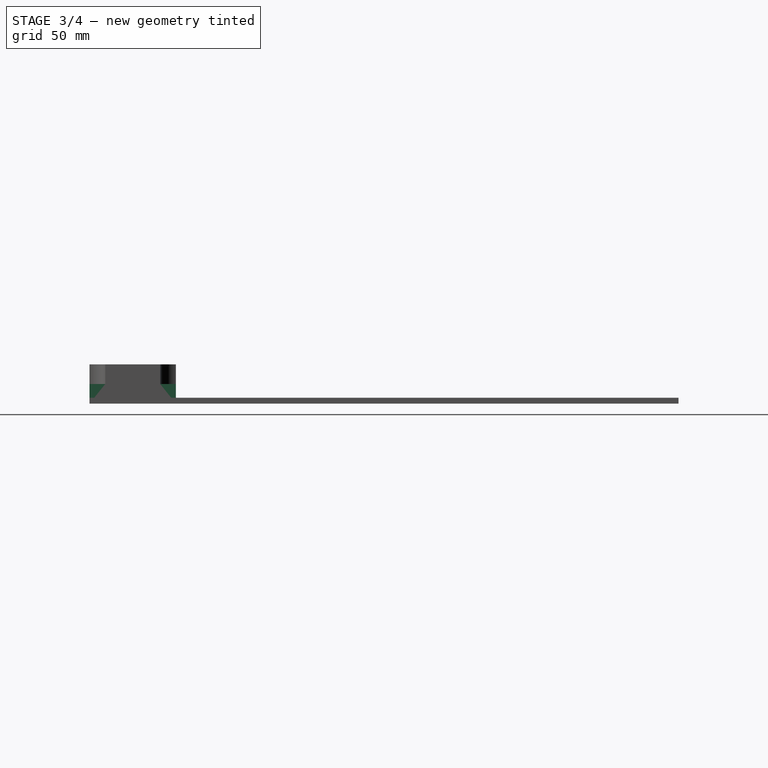
[diagram: stage 3 of 4 — right view after this stage's code; geometry added in this stage tinted green]
FEATURE [PartDesign::Body] Body
  Group = -> [Sketch,Pad,Sketch001,Pocket]
  Origin = -> Origin
  Tip = -> Pocket
FEATURE [App::FeaturePython] Text  # WARN: FeaturePython — macro-defined, semantics opaque (R4)
  Placement = pos=(74.816,232.375,6) rot=(0,0,1;0rad)
  Text = Headers
FEATURE [App::FeaturePython] Text001  # WARN: FeaturePython — macro-defined, semantics opaque (R4)
  Placement = pos=(126.79,204.828,6) rot=(0,0,1;1.5708rad)
  Text = Ethernet + USB
FEATURE [App::FeaturePython] Text002  # WARN: FeaturePython — macro-defined, semantics opaque (R4)
  Placement = pos=(99.7318,194.828,6) rot=(0,0,1;1.5708rad)
  Text = Camera
FEATURE [App::FeaturePython] Text003  # WARN: FeaturePython — macro-defined, semantics opaque (R4)
  Placement = pos=(69.7318,194.828,6) rot=(0,0,1;1.5708rad)
  Text = Power
FEATURE [App::FeaturePython] Text004  # WARN: FeaturePython — macro-defined, semantics opaque (R4)
  Placement = pos=(84.7318,194.828,6) rot=(0,0,1;1.5708rad)
  Text = HDMI
FEATURE [App::FeaturePython] Text005  # WARN: FeaturePython — macro-defined, semantics opaque (R4)
  Placement = pos=(97.5434,112.684,6) rot=(0,0,1;1.5708rad)
  Text = HDMI
FEATURE [App::FeaturePython] Text006  # WARN: FeaturePython — macro-defined, semantics opaque (R4)
  Placement = pos=(57.5434,107.684,6) rot=(0,0,1;1.5708rad)
  Text = Ribbon Cabble
FEATURE [App::FeaturePython] Text007  # WARN: FeaturePython — macro-defined, semantics opaque (R4)
  Placement = pos=(97.5434,87.6837,6) rot=(0,0,1;1.5708rad)
  Text = Power
FEATURE [App::FeaturePython] Text008  # WARN: FeaturePython — macro-defined, semantics opaque (R4)
  Placement = pos=(57.5434,137.684,6) rot=(0,0,1;1.5708rad)
  Text = Speaker Out
FEATURE [Sketcher::SketchObject] Sketch002
  FullyConstrained = true
  MapMode = 5
  sketch-geometry (4):
    g0: LineSegment StartX=0 StartY=0 StartZ=0 EndX=98 EndY=0 EndZ=0
    g1: LineSegment StartX=98 StartY=0 StartZ=0 EndX=98 EndY=44 EndZ=0
    g2: LineSegment StartX=98 StartY=44 StartZ=0 EndX=0 EndY=44 EndZ=0
    g3: LineSegment StartX=0 StartY=44 StartZ=0 EndX=0 EndY=0 EndZ=0
  constraints (11):
    c: Coincident(g0,g1)
    c: Coincident(g1,g2)
    c: Coincident(g2,g3)
    c: Coincident(g3,g0)
    c: Horizontal(g0)
    c: Horizontal(g2)
    c: Vertical(g1)
    c: Vertical(g3)
    c: Coincident(g0,g-1)
    c: DistanceX(g2,g2) = 98
    c: DistanceY(g1,g1) = 44
FEATURE [PartDesign::Pad] Pad001
  Direction = (1,1,1)
  Length = 20
  Length2 = 100
  Profile = -> Sketch002
  Type = 0
FEATURE [Sketcher::SketchObject] Sketch003
  FullyConstrained = true
  MapMode = 5
  Placement = pos=(0,0,20) rot=(0,0,1;0rad)
  Support = -> [Pad001]
  sketch-geometry (12):
    g0: LineSegment StartX=0 StartY=44 StartZ=0 EndX=-2.2e-15 EndY=36 EndZ=0
    g1: LineSegment StartX=0 StartY=44 StartZ=0 EndX=10 EndY=44 EndZ=0
    g2: LineSegment StartX=0 StartY=0 StartZ=0 EndX=6e-16 EndY=8 EndZ=0
    g3: LineSegment StartX=0 StartY=0 StartZ=0 EndX=10 EndY=0 EndZ=0
    g4: ArcOfCircle CenterX=0 CenterY=-2.25 CenterZ=0 NormalX=0 NormalY=0 NormalZ=1 AngleXU=0 Radius=10.25 StartAngle=0.221314 EndAngle=1.5708
    g5: ArcOfCircle CenterX=1.8 CenterY=44 CenterZ=0 NormalX=0 NormalY=0 NormalZ=1 AngleXU=0 Radius=8.2 StartAngle=4.49107 EndAngle=6.28319
    g6: LineSegment StartX=98 StartY=36 StartZ=0 EndX=98 EndY=44 EndZ=0
    g7: LineSegment StartX=98 StartY=44 StartZ=0 EndX=88 EndY=44 EndZ=0
    g8: ArcOfCircle CenterX=98 CenterY=46.25 CenterZ=0 NormalX=0 NormalY=0 NormalZ=1 AngleXU=0 Radius=10.25 StartAngle=3.36291 EndAngle=4.71239
    g9: LineSegment StartX=88 StartY=1e-15 StartZ=0 EndX=98 EndY=0 EndZ=0
    g10: LineSegment StartX=98 StartY=0 StartZ=0 EndX=98 EndY=8 EndZ=0
    g11: ArcOfCircle CenterX=96.2 CenterY=0 CenterZ=0 NormalX=0 NormalY=0 NormalZ=1 AngleXU=0 Radius=8.2 StartAngle=1.34948 EndAngle=3.14159
  constraints (40):
    c: PointOnObject(g0,g-2)
    c: PointOnObject(g0,g-2)
    c: Coincident(g1,g0)
    c: Coincident(g2,g-1)
    c: PointOnObject(g2,g-2)
    c: Coincident(g3,g2)
    c: PointOnObject(g3,g-1)
    c: Coincident(g4,g3)
    c: Coincident(g4,g2)
    c: DistanceX(g2,g3) = 10
    c: DistanceY(g2,g2) = 8
    c: DistanceY(g2,g0) = 28
    c: DistanceY(g0,g0) = 8
    c: DistanceX(g0,g1) = 10
    c: DistanceX(g2,g4) = 0
    c: Coincident(g5,g0)
    c: Coincident(g5,g1)
    c: Horizontal(g1,g0)
    c: DistanceY(g5,g0) = 0
    c: Vertical(g6)
    c: PointOnObject(g7,g6)
    c: Horizontal(g7)
    c: Horizontal(g6,g7)
    c: Horizontal(g7,g1)
    c: DistanceX(g7,g6) = 10
    c: DistanceX(g1,g7) = 78
    c: DistanceY(g6,g6) = 8
    c: Coincident(g8,g7)
    c: Coincident(g8,g6)
    c: DistanceX(g6,g8) = 0
    c: PointOnObject(g9,g-1)
    c: PointOnObject(g9,g-1)
    c: Coincident(g10,g9)
    c: Vertical(g10)
    c: DistanceY(g9,g10) = 8
    c: DistanceX(g9,g9) = 10
    c: DistanceX(g3,g9) = 78
    c: Coincident(g11,g9)
    c: Coincident(g11,g10)
    c: DistanceY(g9,g11) = 0
FEATURE [PartDesign::Pocket] Pocket001
  BaseFeature = -> Pad001
  Length = 10
  Length2 = 100
  Profile = -> Sketch003
  Type = 0
FEATURE [Sketcher::SketchObject] Sketch011
  FullyConstrained = true
  MapMode = 5
  Placement = pos=(0,0,20) rot=(0,0,1;0rad)
  Support = -> [Hole001]
  sketch-geometry (2):
    g0: Circle CenterX=28 CenterY=22 CenterZ=0 NormalX=0 NormalY=0 NormalZ=1 AngleXU=0 Radius=18
    g1: Circle CenterX=70 CenterY=22 CenterZ=0 NormalX=0 NormalY=0 NormalZ=1 AngleXU=0 Radius=18
  constraints (6):
    c: Diameter(g0) = 36
    c: DistanceX(g-1,g0) = 28
    c: DistanceY(g-1,g0) = 22
    c: Equal(g0,g1) = 36
    c: DistanceY(g0,g1) = 0
    c: DistanceX(g-1,g1) = 70
FEATURE [PartDesign::Pocket] Pocket006
  BaseFeature = -> Hole001
  Length = 2
  Length2 = 100
  Profile = -> Sketch011
  Type = 0
FEATURE [PartDesign::Body] Body002
  Group = -> [Sketch007,Pad002,Sketch009,Pocket004,Sketch008,Pocket005,Sketch010,Hole001,Sketch011,Pocket006]
  Origin = -> Origin002
  Placement = pos=(104.942,-71.4767,0) rot=(0,0,1;0rad)
  Tip = -> Pocket006
FEATURE [App::FeaturePython] Text009  # WARN: FeaturePython — macro-defined, semantics opaque (R4)
  Placement = pos=(50,30,6) rot=(0,0,1;0rad)
  Text = Speaker Left
FEATURE [App::FeaturePython] Text010  # WARN: FeaturePython — macro-defined, semantics opaque (R4)
  Placement = pos=(150,30,6) rot=(0,0,1;0rad)
  Text = Speaker Right
FEATURE [Part::Feature] Part__Feature  label="Copo"
  Placement = pos=(192,254,14) rot=(0.57735,0.57735,0.57735;4.18879rad)
  shape: bbox 24 x 37.5 x 36.48 mm, 45 faces (baked)
FEATURE [App::FeaturePython] Text011  # WARN: FeaturePython — macro-defined, semantics opaque (R4)
  Placement = pos=(157.96,275.194,6) rot=(0,0,1;0rad)
  Text = Diff PCB
FEATURE [TechDraw::DrawSVGTemplate] Template
  EditableTexts = AUTHOR_NAME=AUTHOR NAME; DN=DN; DRAWING_TITLE=DRAWING TITLE; FC-DATE=DD/MM/YYYY; FC-REV=REV A; FC-SC=SCALE; FC-SH=X / Y; FC-SI=A1; FreeCAD_DRAWING=FreeCAD DRAWING; PN=PN
  Height = 594
  Orientation = 1
  Width = 841
FEATURE [TechDraw::DrawViewPart] View
  CoarseView = false
  Direction = (0,0,1)
  Focus = 100
  HardHidden = false
  IsoCount = 0
  IsoHidden = false
  IsoVisible = false
  LockPosition = false
  Perspective = false
  Rotation = 0
  ScaleType = 0
  SeamHidden = false
  SeamVisible = true
  SmoothHidden = false
  SmoothVisible = true
  Source = -> [Body]
  X = 420.5
  XDirection = (1,0,0)
  Y = 297
FEATURE [TechDraw::DrawPage] Page
  KeepUpdated = true
  NextBalloonIndex = 1
  ProjectionType = 0
  Template = -> Template
  Views = -> [View]
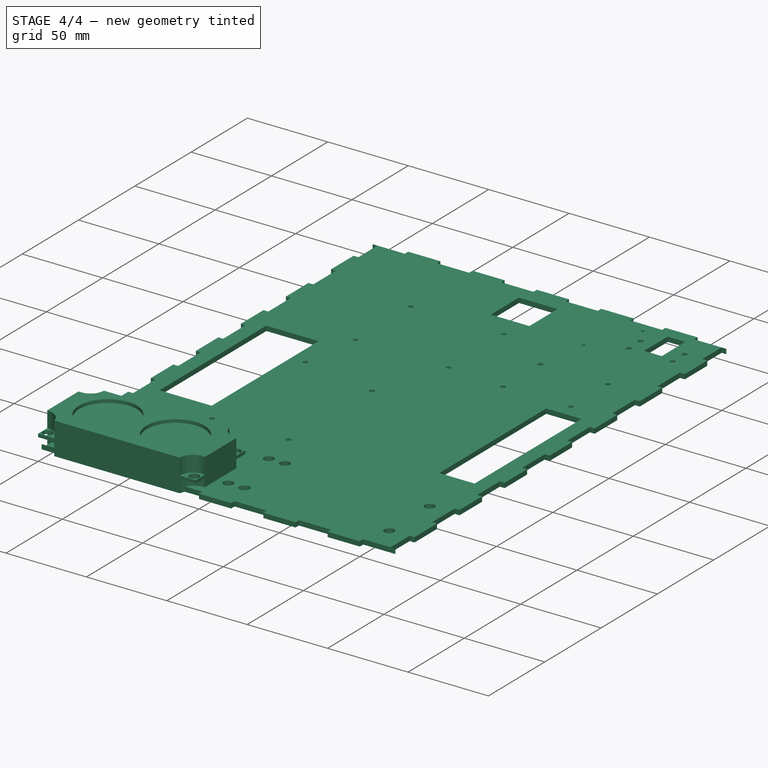
[diagram: stage 4 of 4 — iso view after this stage's code; geometry added in this stage tinted green]
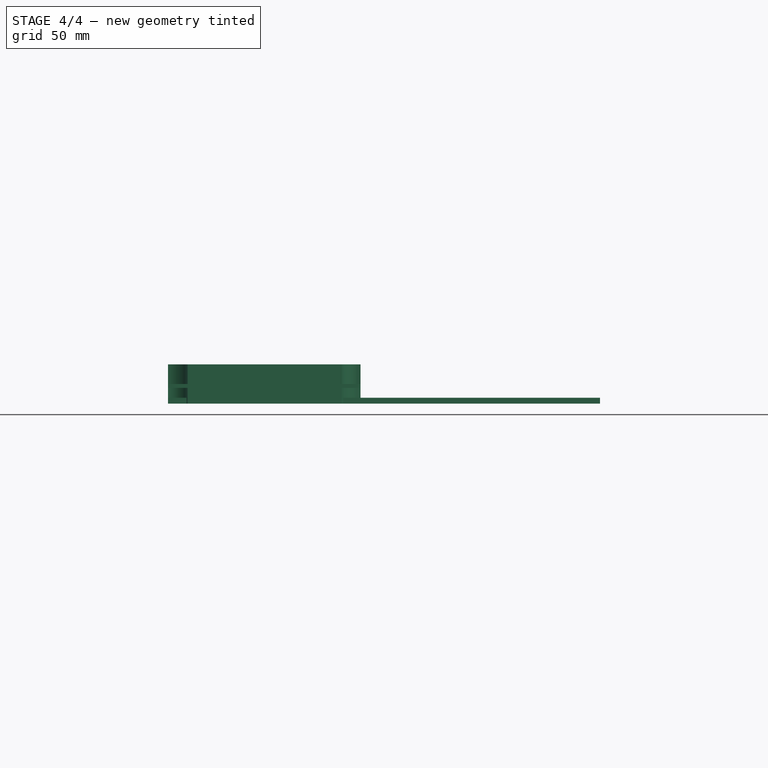
[diagram: stage 4 of 4 — front view after this stage's code; geometry added in this stage tinted green]
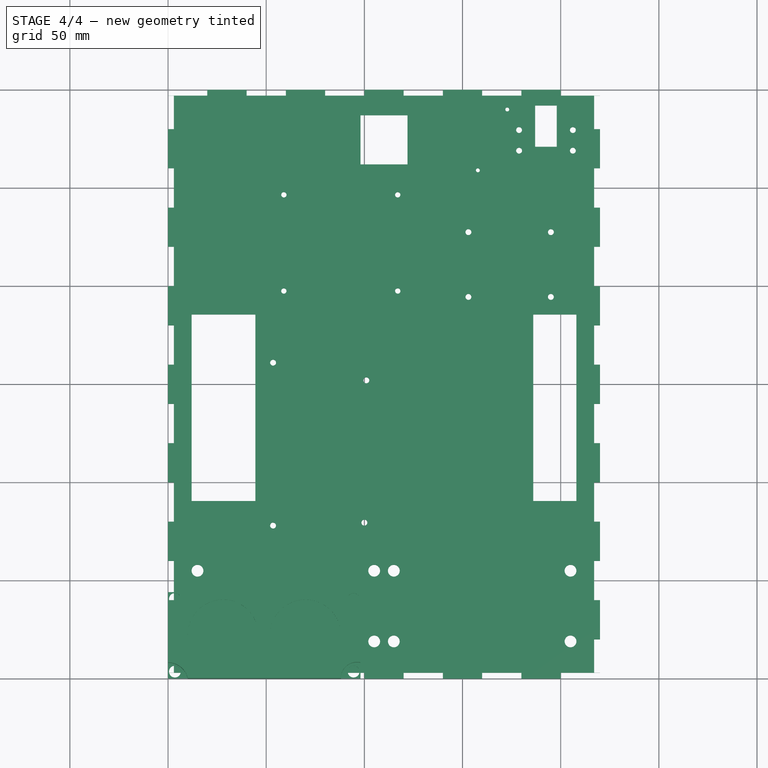
[diagram: stage 4 of 4 — top view after this stage's code; geometry added in this stage tinted green]
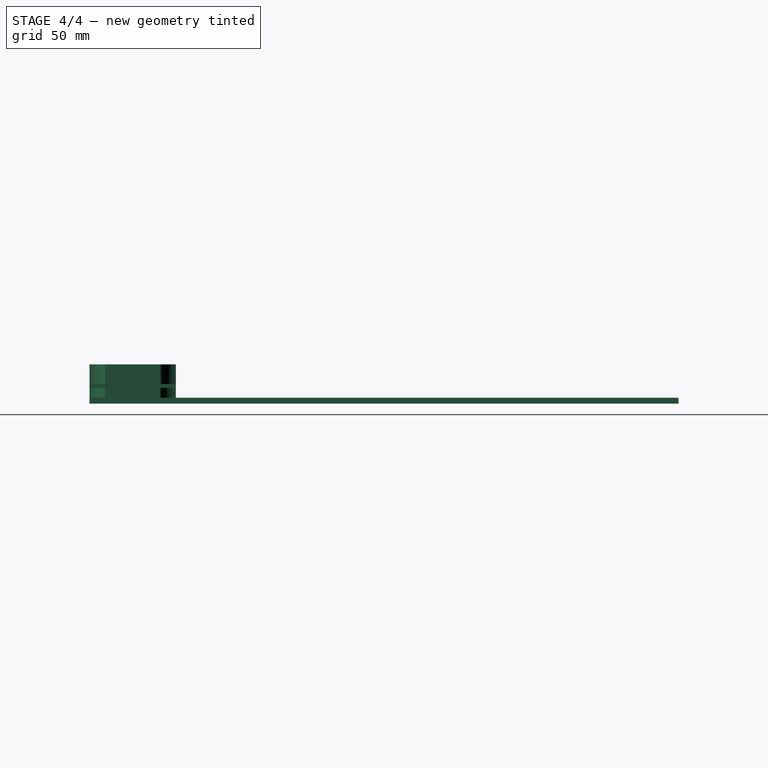
[diagram: stage 4 of 4 — right view after this stage's code; geometry added in this stage tinted green]
FEATURE [Sketcher::SketchObject] Sketch004
  FullyConstrained = true
  MapMode = 5
  Placement = pos=(0,0,0) rot=(1,0,0;3.14159rad)
  Support = -> [Pocket001]
  sketch-geometry (12):
    g0: LineSegment StartX=10 StartY=-44 StartZ=0 EndX=0 EndY=-44 EndZ=0
    g1: LineSegment StartX=6e-16 StartY=-36 StartZ=0 EndX=0 EndY=-44 EndZ=0
    g2: ArcOfCircle CenterX=0 CenterY=-46.25 CenterZ=0 NormalX=0 NormalY=0 NormalZ=1 AngleXU=0 Radius=10.25 StartAngle=0.221314 EndAngle=1.5708
    g3: LineSegment StartX=0 StartY=0 StartZ=0 EndX=2.4e-15 EndY=-8 EndZ=0
    g4: LineSegment StartX=0 StartY=0 StartZ=0 EndX=10 EndY=-2e-15 EndZ=0
    g5: ArcOfCircle CenterX=1.8 CenterY=0 CenterZ=0 NormalX=0 NormalY=0 NormalZ=1 AngleXU=0 Radius=8.2 StartAngle=4.49107 EndAngle=6.28319
    g6: LineSegment StartX=98 StartY=0 StartZ=0 EndX=88 EndY=1.8e-15 EndZ=0
    g7: LineSegment StartX=98 StartY=0 StartZ=0 EndX=98 EndY=-8 EndZ=0
    g8: ArcOfCircle CenterX=98 CenterY=2.25 CenterZ=0 NormalX=0 NormalY=0 NormalZ=1 AngleXU=0 Radius=10.25 StartAngle=3.36291 EndAngle=4.71239
    g9: LineSegment StartX=88 StartY=-44 StartZ=0 EndX=98 EndY=-44 EndZ=0
    g10: LineSegment StartX=98 StartY=-44 StartZ=0 EndX=98 EndY=-36 EndZ=0
    g11: ArcOfCircle CenterX=96.2 CenterY=-44 CenterZ=0 NormalX=0 NormalY=0 NormalZ=1 AngleXU=0 Radius=8.2 StartAngle=1.34948 EndAngle=3.14159
  constraints (39):
    c: PointOnObject(g0,g-2)
    c: Horizontal(g0)
    c: PointOnObject(g1,g-2)
    c: Coincident(g1,g0)
    c: Coincident(g2,g1)
    c: Coincident(g2,g0)
    c: DistanceX(g0,g2) = 0
    c: DistanceX(g0,g0) = 10
    c: DistanceY(g0,g1) = 8
    c: DistanceY(g1,g-1) = 36
    c: Coincident(g3,g-1)
    c: PointOnObject(g3,g-2)
    c: Coincident(g4,g3)
    c: PointOnObject(g4,g-1)
    c: DistanceX(g3,g4) = 10
    c: DistanceY(g3,g3) = 8
    c: Coincident(g5,g3)
    c: Coincident(g5,g4)
    c: DistanceY(g5,g3) = 0
    c: PointOnObject(g6,g-1)
    c: PointOnObject(g6,g-1)
    c: Coincident(g7,g6)
    c: Vertical(g7)
    c: DistanceX(g6,g6) = 10
    c: DistanceX(g4,g6) = 78
    c: DistanceY(g7,g6) = 8
    c: Coincident(g8,g6)
    c: Coincident(g8,g7)
    c: DistanceX(g8,g6) = 0
    c: Horizontal(g9)
    c: Coincident(g10,g9)
    c: Vertical(g10)
    c: DistanceX(g0,g9) = 78
    c: DistanceX(g9,g9) = 10
    c: DistanceY(g9,g10) = 8
    c: DistanceY(g10,g7) = 28
    c: Coincident(g11,g10)
    c: Coincident(g11,g9)
    c: DistanceY(g11,g9) = 0
FEATURE [PartDesign::Pocket] Pocket002
  BaseFeature = -> Pocket001
  Length = 8
  Length2 = 100
  Profile = -> Sketch004
  Type = 0
FEATURE [Sketcher::SketchObject] Sketch005
  FullyConstrained = true
  MapMode = 5
  Placement = pos=(0,0,10) rot=(0,0,1;0rad)
  Support = -> [Pocket002]
  sketch-geometry (4):
    g0: Circle CenterX=3.5 CenterY=3.5 CenterZ=0 NormalX=0 NormalY=0 NormalZ=1 AngleXU=0 Radius=3
    g1: Circle CenterX=3.5 CenterY=40.5 CenterZ=0 NormalX=0 NormalY=0 NormalZ=1 AngleXU=0 Radius=3
    g2: Circle CenterX=94.5 CenterY=40.5 CenterZ=0 NormalX=0 NormalY=0 NormalZ=1 AngleXU=0 Radius=3
    g3: Circle CenterX=94.5 CenterY=3.5 CenterZ=0 NormalX=0 NormalY=0 NormalZ=1 AngleXU=0 Radius=3
  constraints (12):
    c: Diameter(g0) = 6
    c: DistanceY(g-1,g0) = 3.5
    c: DistanceX(g-1,g0) = 3.5
    c: Diameter(g1) = 6
    c: DistanceX(g-1,g1) = 3.5
    c: DistanceY(g-1,g1) = 40.5
    c: Diameter(g2) = 6
    c: Diameter(g3) = 6
    c: DistanceY(g1,g2) = 0
    c: DistanceX(g1,g2) = 91
    c: DistanceX(g0,g3) = 91
    c: DistanceY(g3,g0) = 0
FEATURE [PartDesign::Hole] Hole
  BaseFeature = -> Pocket002
  Depth = 25
  DepthType = 0
  Diameter = 6
  DrillForDepth = false
  DrillPoint = 1
  DrillPointAngle = 118
  HoleCutCountersinkAngle = 90
  HoleCutCustomValues = false
  HoleCutDepth = 0
  HoleCutDiameter = 6.1
  HoleCutType = 0
  ModelActualThread = false
  Profile = -> Sketch005
  Tapered = false
  TaperedAngle = 90
  ThreadAngle = 0
  ThreadClass = 0
  ThreadCutOffInner = 0
  ThreadCutOffOuter = 0
  ThreadDirection = 0
  ThreadFit = 0
  ThreadPitch = 0
  ThreadSize = 0
  ThreadType = 0
  Threaded = false
FEATURE [Sketcher::SketchObject] Sketch006
  FullyConstrained = true
  MapMode = 5
  Placement = pos=(0,0,20) rot=(0,0,1;0rad)
  Support = -> [Hole]
  sketch-geometry (2):
    g0: Circle CenterX=28 CenterY=22 CenterZ=0 NormalX=0 NormalY=0 NormalZ=1 AngleXU=0 Radius=18
    g1: Circle CenterX=70 CenterY=22 CenterZ=0 NormalX=0 NormalY=0 NormalZ=1 AngleXU=0 Radius=18
  constraints (6):
    c: Diameter(g0) = 36
    c: DistanceX(g-1,g0) = 28
    c: DistanceY(g-1,g0) = 22
    c: Equal(g0,g1) = 36
    c: DistanceY(g0,g1) = 0
    c: DistanceX(g-1,g1) = 70
FEATURE [PartDesign::Pocket] Pocket003
  BaseFeature = -> Hole
  Length = 2
  Length2 = 100
  Profile = -> Sketch006
  Type = 0
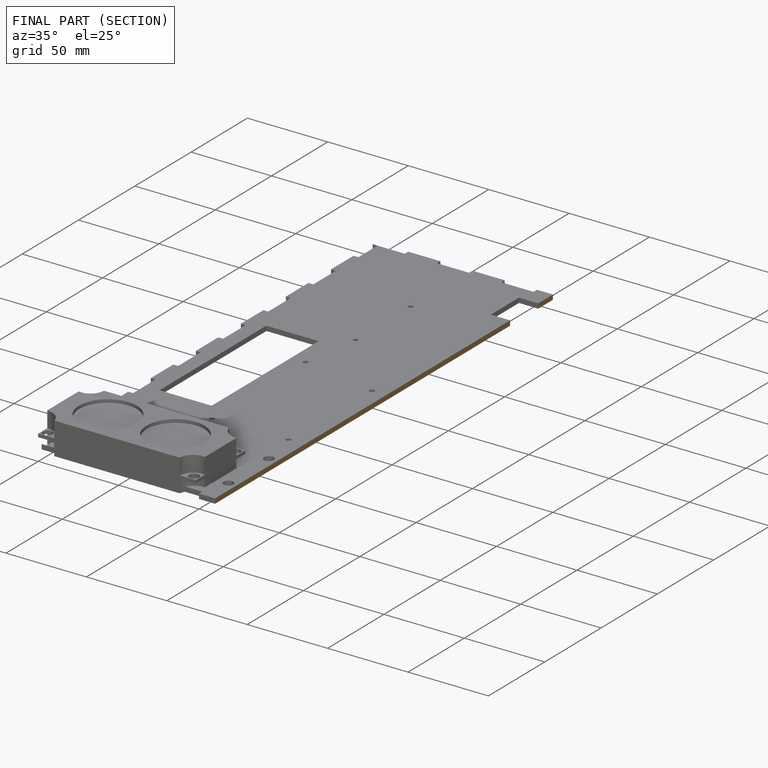
[diagram: finished part — half-section view (interior)]
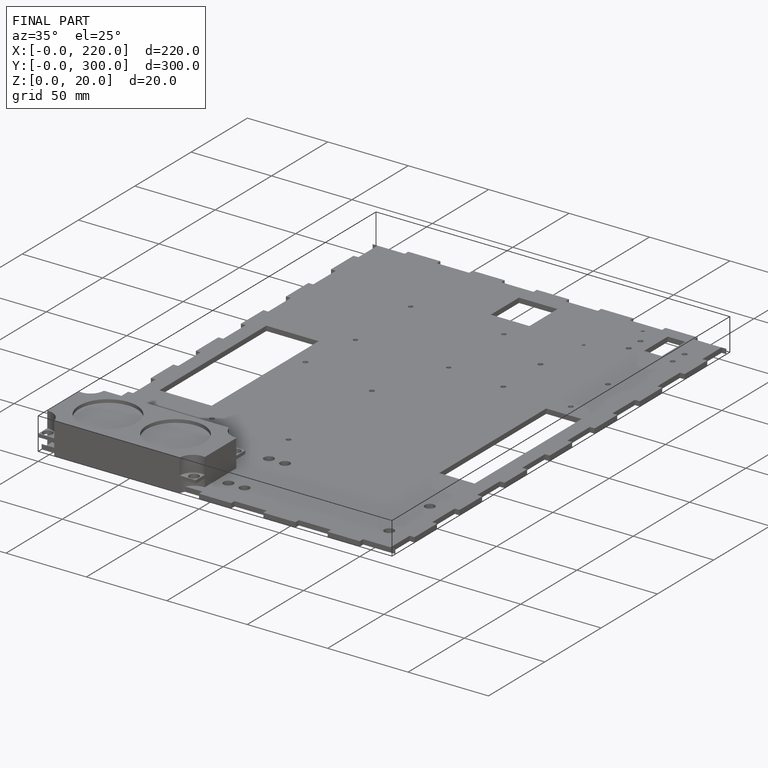
[diagram: finished part — iso view with bounding-box wireframe]
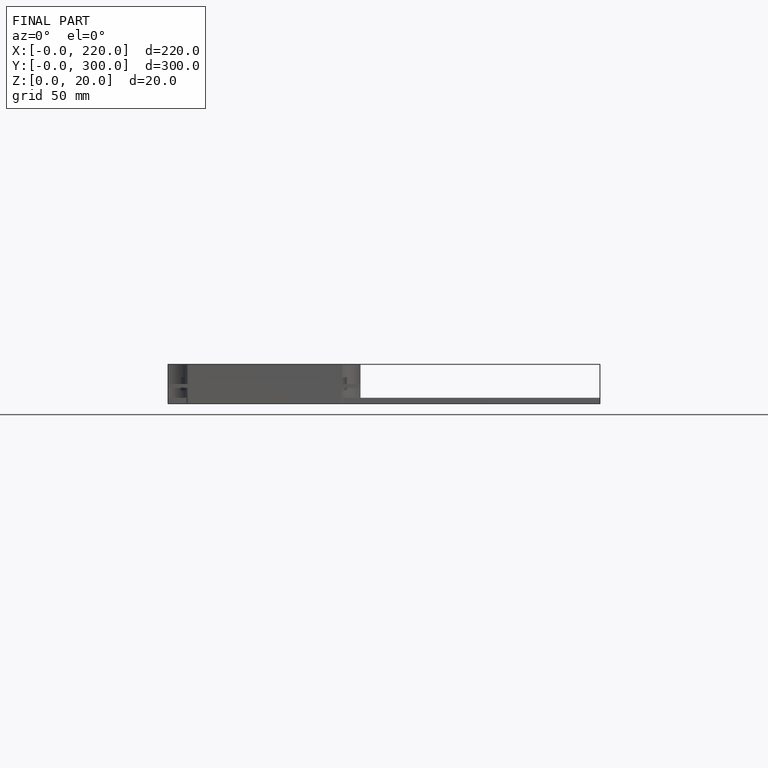
[diagram: finished part — front view with bounding-box wireframe]
